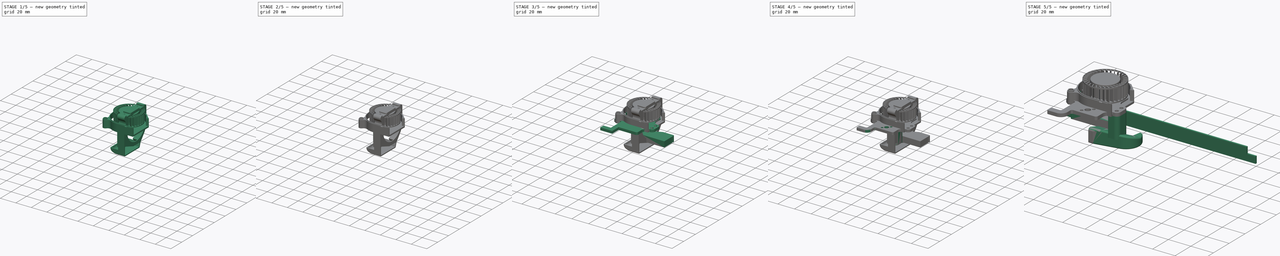
[diagram: build sequence overview — one tinted view per stage of 5, left to right]
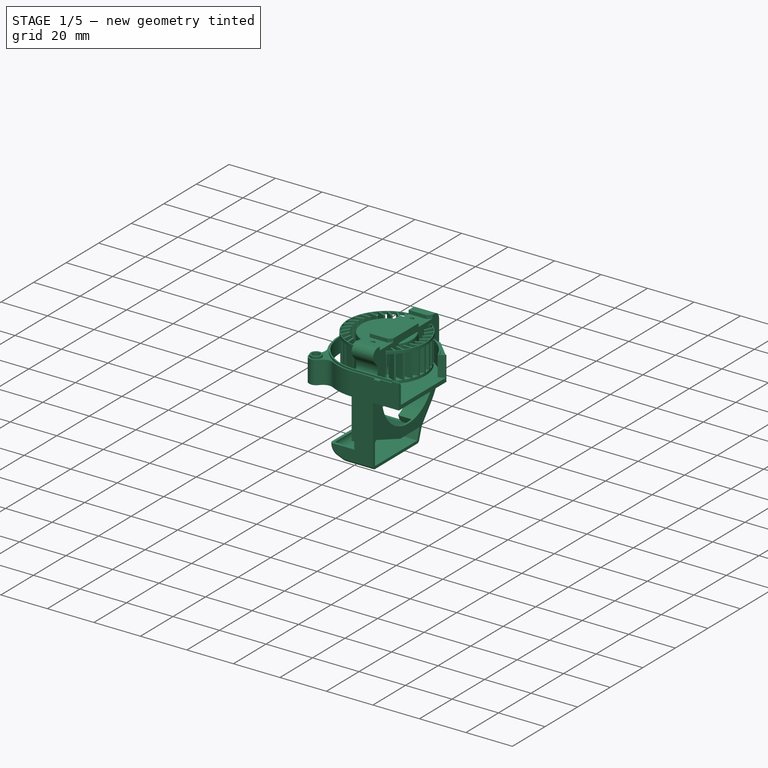
[diagram: stage 1 of 5 — iso view after this stage's code; geometry added in this stage tinted green]
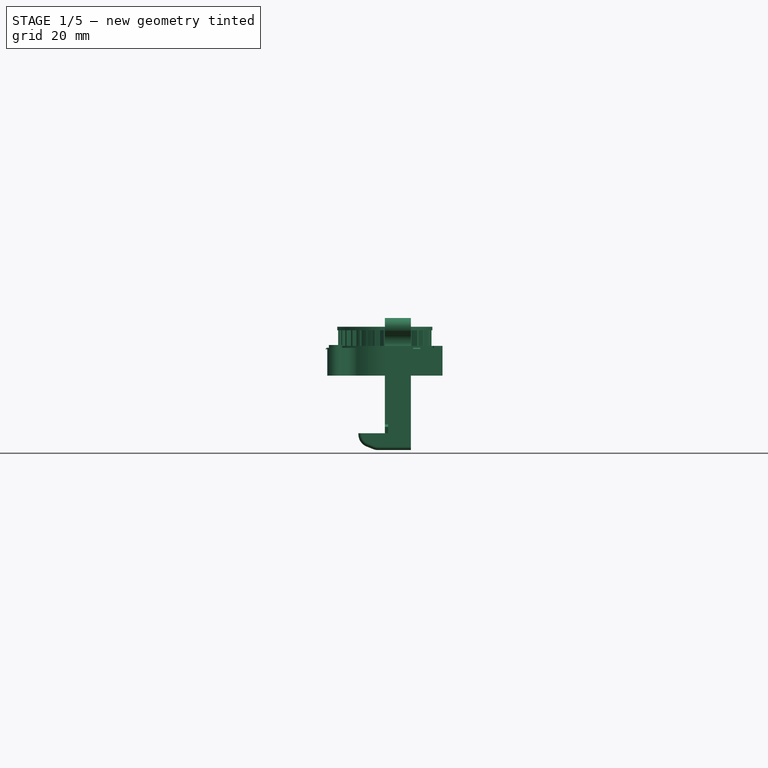
[diagram: stage 1 of 5 — front view after this stage's code; geometry added in this stage tinted green]
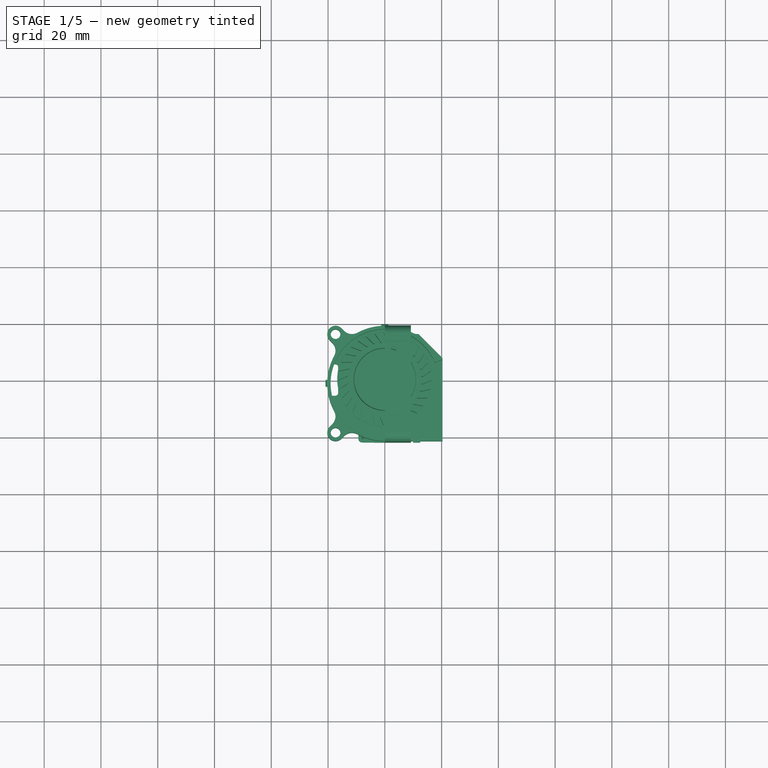
[diagram: stage 1 of 5 — top view after this stage's code; geometry added in this stage tinted green]
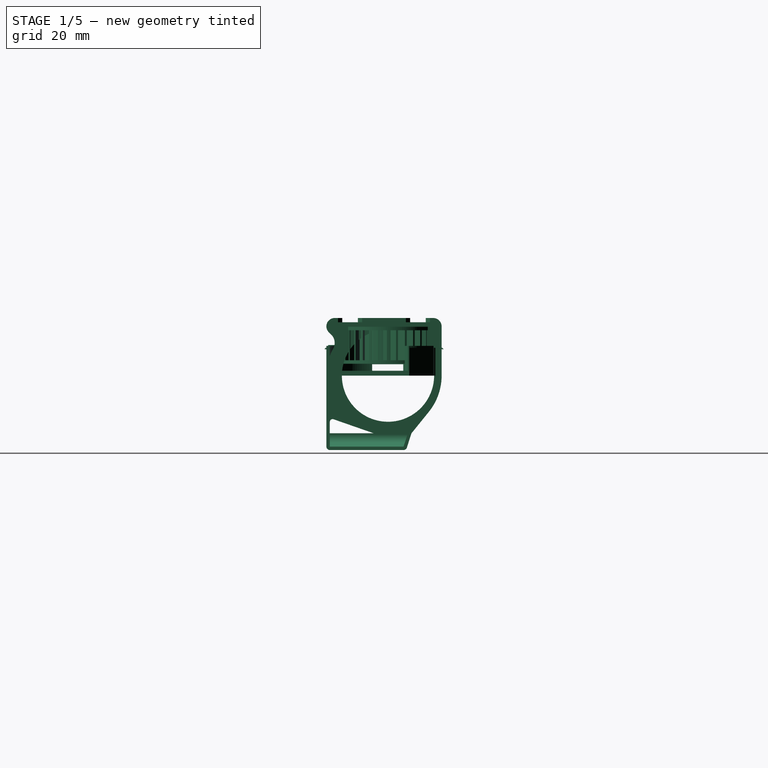
[diagram: stage 1 of 5 — right view after this stage's code; geometry added in this stage tinted green]
FCSTD DOCUMENT  (FreeCAD 2021.922R24301 +4188 (Git))
Label: toolhead
License: All rights reserved
LicenseURL: http://en.wikipedia.org/wiki/All_rights_reserved
objects: Sketcher::SketchObject×31, PartDesign::Pad×18, PartDesign::Pocket×18, PartDesign::Fillet×16, Part::Feature×6, PartDesign::Body×6, App::Part×5, PartDesign::SubShapeBinder×5, PartDesign::CoordinateSystem×4, PartDesign::Chamfer×4, Part::SubShapeBinder×4, PartDesign::PolarPattern×4, App::Link×2, PartDesign::LinearPattern×2, PartDesign::Thickness×2, PartDesign::Line×2, App::DocumentObjectGroup×1, App::FeaturePython×1, PartDesign::Draft×1, Part::Box×1, +3 more types
note: 257 computed .brp shape members not serialized (recipe doc carries the construction recipe); baked Part::Feature solids carry a one-line shape summary decoded from their .brp
EXTERNAL_REF file=Xprinter_v2_0_12.FCStd obj=Model
EXTERNAL_REF file=Xprinter_v2_0_13.FCStd obj=Model

FEATURE [Sketcher::SketchObject] Sketch012
  FullyConstrained = false
  MapMode = 5
  Support = -> [XY_Plane004]
  sketch-geometry (8):
    g0: LineSegment [constr] StartX=-15.5479 StartY=-5 StartZ=0 EndX=-0.117523 EndY=-5 EndZ=0
    g1: LineSegment [constr] StartX=-9.05091 StartY=-8.2902 StartZ=0 EndX=-9.05091 EndY=9.26222 EndZ=0
    g2: Circle [constr] CenterX=-11.6243 CenterY=0 CenterZ=0 NormalX=0 NormalY=0 NormalZ=1 AngleXU=0 Radius=5
    g3: LineSegment StartX=-9.48133 StartY=-6.20854 StartZ=0 EndX=-8.30165 EndY=-6.20854 EndZ=0
    g4: ArcOfCircle CenterX=-8.30165 CenterY=-3.80965 CenterZ=0 NormalX=0 NormalY=0 NormalZ=1 AngleXU=0 Radius=2.39888 StartAngle=4.71239 EndAngle=5.56205
    g5: LineSegment StartX=-6.49994 StartY=-5.39348 StartZ=0 EndX=-0.713194 EndY=1.18931 EndZ=0
    g6: LineSegment StartX=-0.713194 StartY=1.18931 StartZ=0 EndX=-1.8241 EndY=2.13505 EndZ=0
    g7: LineSegment StartX=-1.8241 StartY=2.13505 StartZ=0 EndX=-7.03617 EndY=-4.27814 EndZ=0
  constraints (10):
    c: Horizontal(g0)
    c: Distance(g-1,g0) = 5
    c: Vertical(g1)
    c: PointOnObject(g2,g-1)
    c: Diameter(g2) = 10
    c: Horizontal(g3)
    c: Tangent(g3,g4) = -1.5708
    c: Tangent(g4,g5) = -1.5708
    c: Coincident(g5,g6)
    c: Coincident(g6,g7)
FEATURE [Part::Feature] Part__Feature420  label="4020 Blower Fan v5"
  Placement = pos=(0,0,0) rot=(0.707107,0,0.707107;3.14159rad)
  shape: bbox 17.2 x 41.8 x 41.22 mm, 289 faces, 2 solids (baked)
FEATURE [PartDesign::SubShapeBinder] Binder  label="Binder(4020 Blower Fan v5)"
  BindCopyOnChange = 0
  BindMode = 0
  ClaimChildren = false
  Context = -> <external Xprinter_v2_0_12.FCStd>#Model [Unbenannt.Part.Body003.Binder.]
  FillStyle = 0
  Fuse = false
  MakeFace = true
  PartialLoad = false
  Relative = true
  Support = -> [Part__Feature420]
  _Version = 7
FEATURE [Sketcher::SketchObject] Sketch013
  AttachmentOffset = pos=(0,0,8.4) rot=(0,0,1;0rad)
  ExternalGeometry = -> [Binder]
  FullyConstrained = false
  MapMode = 5
  Placement = pos=(8.4,-1.9e-15,1.9e-15) rot=(0.57735,0.57735,0.57735;2.0944rad)
  Support = -> [YZ_Plane006]
  sketch-geometry (5):
    g0: LineSegment StartX=-20.5023 StartY=-20.3193 StartZ=0 EndX=7.01019 EndY=-20.3193 EndZ=0
    g1: LineSegment StartX=7.01019 StartY=-20.3193 StartZ=0 EndX=5.5 EndY=-25 EndZ=0
    g2: LineSegment StartX=5.5 StartY=-25 StartZ=0 EndX=-20.5023 EndY=-25 EndZ=0
    g3: LineSegment StartX=-20.5023 StartY=-25 StartZ=0 EndX=-20.5023 EndY=-20.3193 EndZ=0
    g4: LineSegment [constr] StartX=-2.38408 StartY=-28.2 StartZ=0 EndX=3.17164 EndY=-28.2 EndZ=0
  constraints (12):
    c: Coincident(g0,g1)
    c: Coincident(g1,g2)
    c: Coincident(g2,g3)
    c: Coincident(g3,g0)
    c: Horizontal(g2)
    c: Vertical(g3)
    c: Coincident(g0,g-4)
    c: Coincident(g0,g-3)
    c: Horizontal(g4)
    c: Distance(g-1,g4) = 28.2
    c: Distance(g4,g2) = 3.2
    c: DistanceX(g-2,g1) = 5.5
FEATURE [PartDesign::Pad] Pad007
  AddSubType = 0
  CheckUpToFaceLimits = true
  ClaimChildren = false
  Direction = (1,1,1)
  Fit = 0
  FitJoin = 0
  InnerFit = 0
  InnerFitJoin = 0
  InnerTaperAngle = 0
  InnerTaperAngleRev = 0
  Length = 0.8
  Length2 = 16.5
  Linearize = true
  NewSolid = false
  Placement = pos=(0,0,0) rot=(0.57735,0.57735,0.57735;2.0944rad)
  Profile = -> Sketch013
  Refine = true
  Reversed = true
  Suppress = false
  Type = 4
  _ProfileBasedVersion = 1
FEATURE [PartDesign::Chamfer] Chamfer
  AddSubType = 0
  Angle = 45
  Base = -> Pad007 [Edge9]
  BaseFeature = -> Pad007
  ChamferType = 1
  FlipDirection = false
  NewSolid = false
  Placement = pos=(0,0,0) rot=(0.57735,0.57735,0.57735;2.0944rad)
  Refine = true
  Size = 5
  Size2 = 2
  SupportTransform = false
  Suppress = false
FEATURE [PartDesign::Fillet] Fillet004
  AddSubType = 0
  Base = -> Chamfer [Edge9,Edge6]
  BaseFeature = -> Chamfer
  NewSolid = false
  Placement = pos=(0,0,0) rot=(0.57735,0.57735,0.57735;2.0944rad)
  Radius = 3.4
  Refine = true
  SupportTransform = false
  Suppress = false
FEATURE [PartDesign::Thickness] Thickness
  AddSubType = 0
  Base = -> Fillet004 [Face6,Face4]
  BaseFeature = -> Fillet004
  Intersection = false
  Join = 0
  Mode = 0
  NewSolid = false
  Refine = true
  SupportTransform = false
  Suppress = false
  Value = 1.2
FEATURE [Sketcher::SketchObject] Sketch014
  AttachmentOffset = pos=(0,0,8.4) rot=(0,0,1;0rad)
  ExternalGeometry = -> [Binder,Thickness]
  FullyConstrained = true
  MapMode = 5
  Placement = pos=(8.4,-1.9e-15,1.9e-15) rot=(0.57735,0.57735,0.57735;2.0944rad)
  Support = -> [YZ_Plane006]
  expr: AttachmentOffset.Base.z = Sketch013.AttachmentOffset.Base.z
  sketch-geometry (13):
    g0: Circle CenterX=0 CenterY=0 CenterZ=0 NormalX=0 NormalY=0 NormalZ=1 AngleXU=0 Radius=16.25
    g1: LineSegment StartX=-18.7523 StartY=20.3 StartZ=0 EndX=15.9477 EndY=20.3 EndZ=0
    g2: ArcOfCircle CenterX=15.9477 CenterY=17.35 CenterZ=0 NormalX=0 NormalY=0 NormalZ=1 AngleXU=0 Radius=2.95 StartAngle=3.8593e-07 EndAngle=1.5708
    g3: LineSegment StartX=18.8977 StartY=17.35 StartZ=0 EndX=18.8977 EndY=3.6e-15 EndZ=0
    g4: ArcOfCircle CenterX=-1.40227 CenterY=-9.7e-15 CenterZ=0 NormalX=0 NormalY=0 NormalZ=1 AngleXU=0 Radius=20.3 StartAngle=5.60302 EndAngle=6.28319
    g5: LineSegment StartX=14.3803 StartY=-12.7672 StartZ=0 EndX=8.2711 EndY=-20.3193 EndZ=0
    g6: LineSegment StartX=8.2711 StartY=-20.3193 StartZ=0 EndX=-5 EndY=-20.3193 EndZ=0
    g7: ArcOfCircle CenterX=-18.7523 CenterY=17.35 CenterZ=0 NormalX=0 NormalY=0 NormalZ=1 AngleXU=0 Radius=2.95 StartAngle=1.5708 EndAngle=3.14159
    g8: LineSegment StartX=-21.7023 StartY=17.35 StartZ=0 EndX=-21.7023 EndY=-20.3193 EndZ=0
    g9: LineSegment StartX=-21.7023 StartY=-20.3193 StartZ=0 EndX=-20.5023 EndY=-20.3193 EndZ=0
    g10: LineSegment StartX=-20.5023 StartY=-20.3193 StartZ=0 EndX=-20.5023 EndY=-16.3193 EndZ=0
    g11: ArcOfCircle CenterX=-19.5023 CenterY=-16.3193 CenterZ=0 NormalX=0 NormalY=0 NormalZ=1 AngleXU=0 Radius=1 StartAngle=1.23515 EndAngle=3.14159
    g12: LineSegment StartX=-19.1729 StartY=-15.3751 StartZ=0 EndX=-5 EndY=-20.3193 EndZ=0
  constraints (31):
    c: Coincident(g0,g-1)
    c: Diameter(g0) = 32.5
    c: Horizontal(g1)
    c: Coincident(g2,g3)
    c: PointOnObject(g3,g-1)
    c: Tangent(g3,g4) = 1.5708
    c: Tangent(g4,g5) = 1.5708
    c: Coincident(g5,g6)
    c: Horizontal(g6)
    c: Coincident(g7,g-4)
    c: Coincident(g2,g-3)
    c: Tangent(g7,g1) = 1.5708
    c: Coincident(g4,g-5)
    c: Coincident(g5,g-6)
    c: Coincident(g9,g8)
    c: Horizontal(g9)
    c: Coincident(g9,g10)
    c: Vertical(g10)
    c: Tangent(g10,g11) = 1.5708
    c: Tangent(g11,g12) = 1.5708
    c: Coincident(g12,g6)
    c: DistanceX(g-2,g6) = -5
    c: Diameter(g11) = 2
    c: Distance(g9) = 1.2
    c: Coincident(g8,g-7)
    c: Distance(g10) = 4
    c: Tangent(g3,g2)
    c: Tangent(g8,g7) = -1.5708
    c: Tangent(g1,g2) = 1.5708
    c: Diameter(g-4) = 5.9
    c: Equal(g7,g-4)
FEATURE [PartDesign::Pad] Pad
  AddSubType = 0
  BaseFeature = -> Thickness
  CheckUpToFaceLimits = true
  ClaimChildren = false
  Direction = (1,1,1)
  Fit = 0
  FitJoin = 0
  InnerFit = 0
  InnerFitJoin = 0
  InnerTaperAngle = 0
  InnerTaperAngleRev = 0
  Length = 0.8
  Length2 = 100
  Linearize = true
  NewSolid = false
  Profile = -> Sketch014
  Refine = true
  Suppress = false
  Type = 0
  _ProfileBasedVersion = 1
FEATURE [Sketcher::SketchObject] Sketch
  ExternalGeometry = -> [Binder,Pad]
  FullyConstrained = true
  MapMode = 5
  Placement = pos=(0,0,0) rot=(0.57735,0.57735,0.57735;2.0944rad)
  Support = -> [YZ_Plane006]
  sketch-geometry (12):
    g0: ArcOfCircle CenterX=-1.40227 CenterY=-1.35e-14 CenterZ=0 NormalX=0 NormalY=0 NormalZ=1 AngleXU=0 Radius=19.1 StartAngle=5.10492 EndAngle=9.42478
    g1: LineSegment StartX=14.3803 StartY=-12.7672 StartZ=0 EndX=8.2711 EndY=-20.3193 EndZ=0
    g2: LineSegment StartX=8.2711 StartY=-20.3193 StartZ=0 EndX=7.01019 EndY=-20.3193 EndZ=0
    g3: LineSegment StartX=7.01019 StartY=-20.3193 StartZ=0 EndX=5.90397 EndY=-17.6473 EndZ=0
    g4: LineSegment StartX=-20.5023 StartY=-6.5e-15 StartZ=0 EndX=-20.5023 EndY=-20.3193 EndZ=0
    g5: LineSegment StartX=-20.5023 StartY=-20.3193 StartZ=0 EndX=-21.7023 EndY=-20.3193 EndZ=0
    g6: LineSegment StartX=-21.7023 StartY=-20.3193 StartZ=0 EndX=-21.7023 EndY=17.35 EndZ=0
    g7: ArcOfCircle CenterX=-1.40227 CenterY=-1.35e-14 CenterZ=0 NormalX=0 NormalY=0 NormalZ=1 AngleXU=0 Radius=20.3 StartAngle=5.60302 EndAngle=6.28319
    g8: ArcOfCircle CenterX=-18.7523 CenterY=17.35 CenterZ=0 NormalX=0 NormalY=0 NormalZ=1 AngleXU=0 Radius=2.95 StartAngle=1.5708 EndAngle=3.14159
    g9: LineSegment StartX=-18.7523 StartY=20.3 StartZ=0 EndX=15.9477 EndY=20.3 EndZ=0
    g10: ArcOfCircle CenterX=15.9477 CenterY=17.35 CenterZ=0 NormalX=0 NormalY=0 NormalZ=1 AngleXU=0 Radius=2.95 StartAngle=1.7e-15 EndAngle=1.5708
    g11: LineSegment StartX=18.8977 StartY=17.35 StartZ=0 EndX=18.8977 EndY=0 EndZ=0
  constraints (26):
    c: Coincident(g0,g-6)
    c: Coincident(g1,g2)
    c: Coincident(g2,g3)
    c: Coincident(g3,g0)
    c: Coincident(g2,g-7)
    c: Coincident(g1,g-8)
    c: Coincident(g0,g-9)
    c: Tangent(g0,g4) = -1.5708
    c: Coincident(g4,g5)
    c: Coincident(g5,g-5)
    c: Coincident(g5,g6)
    c: Vertical(g4)
    c: Horizontal(g5)
    c: Coincident(g7,g0)
    c: PointOnObject(g7,g-1)
    c: PointOnObject(g8,g-4)
    c: Tangent(g8,g9) = 1.5708
    c: Tangent(g9,g10) = 1.5708
    c: Tangent(g10,g11) = 1.5708
    c: Coincident(g11,g7)
    c: Equal(g7,g-9)
    c: Tangent(g7,g1) = 1.5708
    c: Coincident(g10,g-3)
    c: Equal(g10,g8)
    c: Coincident(g8,g-4)
    c: Tangent(g6,g8) = 1.5708
FEATURE [PartDesign::Pad] Pad008
  AddSubType = 0
  BaseFeature = -> Pad
  CheckUpToFaceLimits = true
  ClaimChildren = false
  Direction = (1,1,1)
  Fit = 0
  FitJoin = 0
  InnerFit = 0
  InnerFitJoin = 0
  InnerTaperAngle = 0
  InnerTaperAngleRev = 0
  Length = 8.9
  Length2 = 100
  Linearize = true
  NewSolid = false
  Profile = -> Sketch
  Refine = true
  Suppress = false
  Type = 0
  _ProfileBasedVersion = 1
  expr: Length = <<Sketch013>>.AttachmentOffset.Base.z + 0.5
FEATURE [Sketcher::SketchObject] Sketch016
  FullyConstrained = false
  MapMode = 5
  Support = -> [XY_Plane008]
  sketch-geometry (27):
    g0: LineSegment StartX=0.5 StartY=4.9 StartZ=0 EndX=0.5 EndY=-1.59589 EndZ=0
    g1: LineSegment StartX=7.15804 StartY=-8.76562 StartZ=0 EndX=7.6991 EndY=-8.76562 EndZ=0
    g2: LineSegment StartX=8.29913 StartY=-8.61885 StartZ=0 EndX=10.9 EndY=-7.26562 EndZ=0
    g3: LineSegment StartX=10.9 StartY=-7.26562 StartZ=0 EndX=19.9 EndY=-7.26562 EndZ=0
    g4: LineSegment StartX=19.9 StartY=-7.26562 StartZ=0 EndX=20.6475 EndY=-7.48004 EndZ=0
    g5: LineSegment StartX=21.0059 StartY=-7.53043 StartZ=0 EndX=23.2499 EndY=-7.53043 EndZ=0
    g6: ArcOfCircle CenterX=23.2499 CenterY=-3.03043 CenterZ=0 NormalX=0 NormalY=0 NormalZ=1 AngleXU=0 Radius=4.5 StartAngle=4.71239 EndAngle=6.10865
    g7: LineSegment StartX=27.6816 StartY=-3.81185 StartZ=0 EndX=28.7234 EndY=2.097 EndZ=0
    g8: LineSegment [constr] StartX=28.2025 StartY=-0.857426 StartZ=0 EndX=15.4 EndY=1.4 EndZ=0
    g9: GeomPoint [constr] X=15.4 Y=1.4 Z=0
    g10: ArcOfCircle CenterX=28.0289 CenterY=-1.84223 CenterZ=0 NormalX=0 NormalY=0 NormalZ=1 AngleXU=0 Radius=4 StartAngle=0.610536 EndAngle=1.39626
    g11: ArcOfCircle CenterX=22.3748 CenterY=-5.79846 CenterZ=0 NormalX=0 NormalY=0 NormalZ=1 AngleXU=0 Radius=10.9007 StartAngle=4.90566 EndAngle=6.89372
    g12: LineSegment [constr] StartX=10.9 StartY=-7.26562 StartZ=0 EndX=15.4 EndY=1.4 EndZ=0
    g13: LineSegment [constr] StartX=19.9 StartY=-7.26562 StartZ=0 EndX=15.4 EndY=1.4 EndZ=0
    g14: ArcOfCircle CenterX=21.0059 CenterY=-6.23043 CenterZ=0 NormalX=0 NormalY=0 NormalZ=1 AngleXU=0 Radius=1.3 StartAngle=4.43304 EndAngle=4.71239
    g15: ArcOfCircle CenterX=7.6991 CenterY=-7.46562 CenterZ=0 NormalX=0 NormalY=0 NormalZ=1 AngleXU=0 Radius=1.3 StartAngle=4.71239 EndAngle=5.19215
    g16: LineSegment StartX=0.5 StartY=8.5 StartZ=0 EndX=38 EndY=8.5 EndZ=0
    g17: LineSegment StartX=38 StartY=8.5 StartZ=0 EndX=38 EndY=-20.5023 EndZ=0
    g18: LineSegment [constr] StartX=0.5 StartY=-2.1 StartZ=0 EndX=15.4 EndY=1.4 EndZ=0
    g19: LineSegment [constr] StartX=0.5 StartY=4.9 StartZ=0 EndX=15.4 EndY=1.4 EndZ=0
    g20: LineSegment StartX=0.5 StartY=8.5 StartZ=0 EndX=0.5 EndY=4.9 EndZ=0
    g21: LineSegment StartX=0.839864 StartY=-2.47232 StartZ=0 EndX=6.1979 EndY=-8.34205 EndZ=0
    g22: ArcOfCircle CenterX=7.15804 CenterY=-7.46562 CenterZ=0 NormalX=0 NormalY=0 NormalZ=1 AngleXU=0 Radius=1.3 StartAngle=3.88145 EndAngle=4.71239
    g23: ArcOfCircle CenterX=1.8 CenterY=-1.59589 CenterZ=0 NormalX=0 NormalY=0 NormalZ=1 AngleXU=0 Radius=1.3 StartAngle=3.14159 EndAngle=3.88145
    g24: GeomPoint [constr] X=0.5 Y=-2.1 Z=0
    g25: LineSegment StartX=24.4686 StartY=-16.4962 StartZ=0 EndX=4 EndY=-20.5023 EndZ=0
    g26: LineSegment StartX=38 StartY=-20.5023 StartZ=0 EndX=4 EndY=-20.5023 EndZ=0
  constraints (60):
    c: Coincident(g2,g3)
    c: Horizontal(g3)
    c: Coincident(g3,g4)
    c: Horizontal(g5)
    c: Tangent(g5,g6) = -1.5708
    c: Tangent(g6,g7) = -1.5708
    c: Horizontal(g1)
    c: Distance(g9,g-1) = 1.4
    c: Distance(g9,g-2) = 15.4
    c: Coincident(g8,g9)
    c: Perpendicular(g7,g8)
    c: Symmetric(g7,g6,g8)
    c: Distance(g7) = 6
    c: Distance(g8) = 13
    c: Coincident(g10,g7)
    c: Perpendicular(g10,g7)
    c: Angle(g-1,g8) = 2.96706
    c: Radius(g10) = 4
    c: Tangent(g11,g10) = -1.5708
    c: Distance(g3) = 9
    c: Coincident(g12,g2)
    c: Coincident(g12,g8)
    c: Coincident(g13,g3)
    c: Coincident(g13,g8)
    c: Equal(g13,g12)
    c: Tangent(g4,g14) = -1.5708
    c: Tangent(g5,g14) = -1.5708
    c: Tangent(g1,g15) = -1.5708
    c: Tangent(g2,g15) = -1.5708
    c: Equal(g15,g14)
    c: Radius(g14) = 1.3
    c: Horizontal(g16)
    c: Coincident(g17,g16)
    c: Vertical(g17)
    c: Distance(g0,g24) = 7
    c: Coincident(g18,g24)
    c: Coincident(g18,g8)
    c: Coincident(g19,g0)
    c: Coincident(g19,g8)
    c: Equal(g18,g19)
    c: Distance(g1,g3) = 1.5
    c: Radius(g6) = 4.5
    c: Vertical(g0)
    c: Coincident(g20,g16)
    c: Coincident(g20,g0)
    c: Vertical(g20)
    c: Distance(g-1,g0) = 0.5
    c: Tangent(g1,g22) = -1.5708
    c: Tangent(g21,g22) = -1.5708
    c: Equal(g22,g15)
    c: PointOnObject(g24,g0)
    c: PointOnObject(g24,g21)
    c: Tangent(g0,g23) = -1.5708
    c: Tangent(g21,g23) = -1.5708
    c: Equal(g23,g22)
    c: Tangent(g11,g25) = 1.5708
    c: Coincident(g26,g17)
    c: Coincident(g26,g25)
    c: Horizontal(g26)
    c: DistanceX(g-2,g25) = 4
FEATURE [Sketcher::SketchObject] Sketch017
  FullyConstrained = false
  MapMode = 5
  Placement = pos=(0,0,0) rot=(0.57735,0.57735,0.57735;2.0944rad)
  Support = -> [YZ_Plane008]
  sketch-geometry (4):
    g0: LineSegment StartX=-1.30288 StartY=-36.8925 StartZ=0 EndX=4.64185 EndY=-36.8925 EndZ=0
    g1: LineSegment StartX=4.64185 StartY=-36.8925 StartZ=0 EndX=4.64185 EndY=-31.5725 EndZ=0
    g2: LineSegment StartX=4.64185 StartY=-31.5725 StartZ=0 EndX=-1.30288 EndY=-31.5725 EndZ=0
    g3: LineSegment StartX=-1.30288 StartY=-31.5725 StartZ=0 EndX=-1.30288 EndY=-36.8925 EndZ=0
  constraints (8):
    c: Coincident(g0,g1)
    c: Coincident(g1,g2)
    c: Coincident(g2,g3)
    c: Coincident(g3,g0)
    c: Horizontal(g0)
    c: Horizontal(g2)
    c: Vertical(g1)
    c: Vertical(g3)
FEATURE [Sketcher::SketchObject] Sketch018
  ExternalGeometry = -> [Pad008,Binder]
  FullyConstrained = true
  MapMode = 5
  Placement = pos=(0,0,0) rot=(0.57735,0.57735,0.57735;2.0944rad)
  Support = -> [YZ_Plane006]
  sketch-geometry (16):
    g0: LineSegment StartX=-16.1023 StartY=20.3 StartZ=0 EndX=-10.6023 EndY=20.3 EndZ=0
    g1: LineSegment StartX=-10.6023 StartY=20.3 StartZ=0 EndX=-10.6023 EndY=18.8 EndZ=0
    g2: LineSegment StartX=-10.6023 StartY=18.8 StartZ=0 EndX=-16.1023 EndY=18.8 EndZ=0
    g3: LineSegment StartX=-16.1023 StartY=18.8 StartZ=0 EndX=-16.1023 EndY=20.3 EndZ=0
    g4: LineSegment StartX=7.79773 StartY=20.3 StartZ=0 EndX=13.2977 EndY=20.3 EndZ=0
    g5: LineSegment StartX=13.2977 StartY=20.3 StartZ=0 EndX=13.2977 EndY=18.8 EndZ=0
    g6: LineSegment StartX=13.2977 StartY=18.8 StartZ=0 EndX=7.79773 EndY=18.8 EndZ=0
    g7: LineSegment StartX=7.79773 StartY=18.8 StartZ=0 EndX=7.79773 EndY=20.3 EndZ=0
    g8: LineSegment [constr] StartX=-18.7523 StartY=20.3 StartZ=0 EndX=-16.1023 EndY=20.3 EndZ=0
    g9: LineSegment [constr] StartX=13.2977 StartY=20.3 StartZ=0 EndX=15.9477 EndY=20.3 EndZ=0
    g10: LineSegment [constr] StartX=-1.40227 StartY=24 StartZ=0 EndX=-1.40227 EndY=0 EndZ=0
    g11: ArcOfCircle CenterX=-22.7816 CenterY=11.5505 CenterZ=0 NormalX=0 NormalY=0 NormalZ=1 AngleXU=0 Radius=4 StartAngle=5.78785 EndAngle=7.06858
    g12: ArcOfCircle CenterX=-1.40227 CenterY=-1.6e-14 CenterZ=0 NormalX=0 NormalY=0 NormalZ=1 AngleXU=0 Radius=20.3 StartAngle=2.64625 EndAngle=3.14159
    g13: ArcOfCircle CenterX=-18.7523 CenterY=17.35 CenterZ=0 NormalX=0 NormalY=0 NormalZ=1 AngleXU=0 Radius=2.95 StartAngle=3.14159 EndAngle=3.92699
    g14: LineSegment StartX=-19.9532 StartY=14.379 StartZ=0 EndX=-20.8382 EndY=15.264 EndZ=0
    g15: LineSegment StartX=-21.7023 StartY=17.35 StartZ=0 EndX=-21.7023 EndY=0 EndZ=0
  constraints (43):
    c: Coincident(g0,g1)
    c: Coincident(g1,g2)
    c: Coincident(g2,g3)
    c: Coincident(g3,g0)
    c: Horizontal(g0)
    c: Horizontal(g2)
    c: Vertical(g1)
    c: Vertical(g3)
    c: Coincident(g4,g5)
    c: Coincident(g5,g6)
    c: Coincident(g6,g7)
    c: Coincident(g7,g4)
    c: Horizontal(g4)
    c: Horizontal(g6)
    c: Vertical(g5)
    c: Vertical(g7)
    c: Equal(g4,g0)
    c: Equal(g1,g5)
    c: Horizontal(g4,g0)
    c: Distance(g1) = 1.5
    c: Distance(g0) = 5.5
    c: Coincident(g8,g0)
    c: Coincident(g9,g4)
    c: Coincident(g9,g-3)
    c: Equal(g9,g8)
    c: PointOnObject(g10,g-1)
    c: Coincident(g11,g-4)
    c: Coincident(g11,g-4)
    c: Coincident(g12,g-5)
    c: PointOnObject(g12,g-1)
    c: Coincident(g14,g11)
    c: Tangent(g14,g13) = 1.5708
    c: Coincident(g15,g13)
    c: PointOnObject(g15,g-1)
    c: Vertical(g15)
    c: Distance(g10) = 24
    c: Tangent(g12,g11) = 1.5708
    c: Coincident(g13,g-6)
    c: Coincident(g13,g-6)
    c: Coincident(g8,g-6)
    c: Horizontal(g8)
    c: Distance(g13,g3) = 5.6
    c: Symmetric(g13,g-3,g10)
FEATURE [PartDesign::Pocket] Pocket012
  AddSubType = 1
  BaseFeature = -> Pad008
  CheckUpToFaceLimits = true
  ClaimChildren = false
  Fit = 0
  FitJoin = 0
  InnerFit = 0
  InnerFitJoin = 0
  InnerTaperAngle = 0
  InnerTaperAngleRev = 0
  Length = 5
  Length2 = 100
  Linearize = true
  NewSolid = false
  Profile = -> Sketch018
  Refine = true
  Reversed = true
  Suppress = false
  Type = 1
  _ProfileBasedVersion = 1
FEATURE [Sketcher::SketchObject] Sketch019
  ExternalGeometry = -> [Binder]
  FullyConstrained = true
  MapMode = 5
  Placement = pos=(0,0,0) rot=(0.57735,0.57735,0.57735;2.0944rad)
  Support = -> [YZ_Plane006]
  sketch-geometry (8):
    g0: Circle CenterX=-18.7523 CenterY=17.35 CenterZ=0 NormalX=0 NormalY=0 NormalZ=1 AngleXU=0 Radius=2.45
    g1: Circle CenterX=15.9477 CenterY=17.35 CenterZ=0 NormalX=0 NormalY=0 NormalZ=1 AngleXU=0 Radius=2.45
    g2: ArcOfCircle CenterX=-1.40227 CenterY=-1.02e-14 CenterZ=0 NormalX=0 NormalY=0 NormalZ=1 AngleXU=0 Radius=19.85 StartAngle=5.14271 EndAngle=9.42478
    g3: LineSegment StartX=6.87841 StartY=-18.0403 StartZ=0 EndX=7.82192 EndY=-20.3193 EndZ=0
    g4: LineSegment StartX=7.82192 StartY=-20.3193 StartZ=0 EndX=-21.7023 EndY=-20.3193 EndZ=0
    g5: LineSegment StartX=-21.7023 StartY=-20.3193 StartZ=0 EndX=-21.7023 EndY=-17.1693 EndZ=0
    g6: LineSegment StartX=-21.7023 StartY=-17.1693 StartZ=0 EndX=-21.2523 EndY=-17.1693 EndZ=0
    g7: LineSegment StartX=-21.2523 StartY=-17.1693 StartZ=0 EndX=-21.2523 EndY=-3.6e-15 EndZ=0
  constraints (22):
    c: Coincident(g0,g-3)
    c: Diameter(g0) = 4.9
    c: Coincident(g1,g-4)
    c: Equal(g1,g0)
    c: Coincident(g2,g-5)
    c: PointOnObject(g2,g-1)
    c: Coincident(g3,g2)
    c: Coincident(g4,g3)
    c: Horizontal(g4)
    c: Coincident(g4,g5)
    c: Vertical(g5)
    c: Coincident(g5,g6)
    c: Horizontal(g6)
    c: Coincident(g6,g7)
    c: Coincident(g7,g2)
    c: Vertical(g7)
    c: Distance(g-6,g6) = 0.15
    c: PointOnObject(g-6,g5)
    c: PointOnObject(g-7,g4)
    c: Parallel(g3,g-7)
    c: Distance(g-7,g3) = 0.15
    c: Diameter(g2) = 39.7
FEATURE [PartDesign::Pocket] Pocket013
  AddSubType = 1
  BaseFeature = -> Pocket012
  CheckUpToFaceLimits = true
  ClaimChildren = false
  Fit = 0
  FitJoin = 0
  InnerFit = 0
  InnerFitJoin = 0
  InnerTaperAngle = 0
  InnerTaperAngleRev = 0
  Length = 1.15
  Length2 = 100
  Linearize = true
  NewSolid = false
  Profile = -> Sketch019
  Refine = true
  Reversed = true
  Suppress = false
  Type = 0
  _ProfileBasedVersion = 1
FEATURE [Sketcher::SketchObject] Sketch020
  ExternalGeometry = -> [Pocket013]
  FullyConstrained = true
  MapMode = 5
  Placement = pos=(0,0,0) rot=(0.57735,0.57735,0.57735;2.0944rad)
  Support = -> [YZ_Plane006]
  sketch-geometry (2):
    g0: Circle CenterX=-18.7523 CenterY=17.35 CenterZ=0 NormalX=0 NormalY=0 NormalZ=1 AngleXU=0 Radius=2.05
    g1: Circle CenterX=15.9477 CenterY=17.35 CenterZ=0 NormalX=0 NormalY=0 NormalZ=1 AngleXU=0 Radius=2.05
  constraints (4):
    c: Coincident(g0,g-3)
    c: Coincident(g1,g-4)
    c: Equal(g1,g0)
    c: Diameter(g0) = 4.1
FEATURE [PartDesign::Pocket] Pocket014
  AddSubType = 1
  BaseFeature = -> Pocket013
  CheckUpToFaceLimits = true
  ClaimChildren = false
  Fit = 0
  FitJoin = 0
  InnerFit = 0
  InnerFitJoin = 0
  InnerTaperAngle = 0
  InnerTaperAngleRev = 0
  Length = 5.95
  Length2 = 100
  Linearize = true
  NewSolid = false
  Profile = -> Sketch020
  Refine = true
  Reversed = true
  Suppress = false
  Type = 0
  _ProfileBasedVersion = 1
  expr: Length = 4.8mm + Pocket013.Length
FEATURE [Sketcher::SketchObject] Sketch021
  ExternalGeometry = -> [Pocket014]
  FullyConstrained = true
  MapMode = 5
  Placement = pos=(0,0,0) rot=(0.57735,0.57735,0.57735;2.0944rad)
  Support = -> [YZ_Plane006]
  sketch-geometry (12):
    g0: LineSegment StartX=-15.4023 StartY=17.6 StartZ=0 EndX=-11.3023 EndY=17.6 EndZ=0
    g1: LineSegment StartX=-11.3023 StartY=17.6 StartZ=0 EndX=-11.3023 EndY=16.3 EndZ=0
    g2: LineSegment StartX=-11.3023 StartY=16.3 StartZ=0 EndX=-15.4023 EndY=16.3 EndZ=0
    g3: LineSegment StartX=-15.4023 StartY=16.3 StartZ=0 EndX=-15.4023 EndY=17.6 EndZ=0
    g4: LineSegment [constr] StartX=-16.1023 StartY=18.8 StartZ=0 EndX=-15.4023 EndY=17.6 EndZ=0
    g5: LineSegment [constr] StartX=-10.6023 StartY=18.8 StartZ=0 EndX=-11.3023 EndY=17.6 EndZ=0
    g6: LineSegment StartX=8.49773 StartY=17.6 StartZ=0 EndX=12.5977 EndY=17.6 EndZ=0
    g7: LineSegment StartX=12.5977 StartY=17.6 StartZ=0 EndX=12.5977 EndY=16.3 EndZ=0
    g8: LineSegment StartX=12.5977 StartY=16.3 StartZ=0 EndX=8.49773 EndY=16.3 EndZ=0
    g9: LineSegment StartX=8.49773 StartY=16.3 StartZ=0 EndX=8.49773 EndY=17.6 EndZ=0
    g10: LineSegment [constr] StartX=7.79773 StartY=18.8 StartZ=0 EndX=8.49773 EndY=17.6 EndZ=0
    g11: LineSegment [constr] StartX=13.2977 StartY=18.8 StartZ=0 EndX=12.5977 EndY=17.6 EndZ=0
  constraints (32):
    c: Coincident(g0,g1)
    c: Coincident(g1,g2)
    c: Coincident(g2,g3)
    c: Coincident(g3,g0)
    c: Horizontal(g0)
    c: Horizontal(g2)
    c: Vertical(g1)
    c: Vertical(g3)
    c: Distance(g3) = 1.3
    c: Distance(g0) = 4.1
    c: Distance(g0,g-3) = 1.2
    c: Coincident(g4,g-3)
    c: Coincident(g4,g0)
    c: Coincident(g5,g-3)
    c: Coincident(g5,g0)
    c: Equal(g4,g5)
    c: Coincident(g6,g7)
    c: Coincident(g7,g8)
    c: Coincident(g8,g9)
    c: Coincident(g9,g6)
    c: Horizontal(g6)
    c: Horizontal(g8)
    c: Vertical(g7)
    c: Vertical(g9)
    c: Coincident(g10,g-4)
    c: Coincident(g10,g6)
    c: Coincident(g11,g-4)
    c: Coincident(g11,g6)
    c: Equal(g11,g10)
    c: Equal(g10,g5)
    c: Equal(g6,g0)
    c: Equal(g7,g1)
FEATURE [PartDesign::Pocket] Pocket015
  AddSubType = 1
  BaseFeature = -> Pocket014
  CheckUpToFaceLimits = true
  ClaimChildren = false
  Fit = 0
  FitJoin = 0
  InnerFit = 0
  InnerFitJoin = 0
  InnerTaperAngle = 0
  InnerTaperAngleRev = 0
  Length = 5.2
  Length2 = 100
  Linearize = true
  NewSolid = false
  Profile = -> Sketch021
  Refine = true
  Reversed = true
  Suppress = false
  Type = 0
  _ProfileBasedVersion = 1
FEATURE [Sketcher::SketchObject] Sketch022
  AttachmentOffset = pos=(0,0,15.8) rot=(0,0,1;0rad)
  ExternalGeometry = -> [Pocket015]
  FullyConstrained = true
  MapMode = 5
  Placement = pos=(0,0,15.8) rot=(0,0,1;0rad)
  Support = -> [XY_Plane006]
  sketch-geometry (4):
    g0: Circle [constr] CenterX=3.15 CenterY=10.5477 CenterZ=0 NormalX=0 NormalY=0 NormalZ=1 AngleXU=0 Radius=2.05
    g1: Circle [constr] CenterX=3.15 CenterY=-13.3523 CenterZ=0 NormalX=0 NormalY=0 NormalZ=1 AngleXU=0 Radius=2.05
    g2: Circle CenterX=3.15 CenterY=10.5477 CenterZ=0 NormalX=0 NormalY=0 NormalZ=1 AngleXU=0 Radius=1
    g3: Circle CenterX=3.15 CenterY=-13.3523 CenterZ=0 NormalX=0 NormalY=0 NormalZ=1 AngleXU=0 Radius=1
  constraints (10):
    c: Tangent(g0,g-4)
    c: Tangent(g1,g-3)
    c: Tangent(g0,g-5)
    c: Tangent(g1,g-6)
    c: Equal(g0,g1)
    c: Tangent(g0,g-7)
    c: Coincident(g2,g0)
    c: Coincident(g3,g1)
    c: Equal(g2,g3)
    c: Diameter(g2) = 2
FEATURE [PartDesign::Pocket] Pocket016
  AddSubType = 1
  BaseFeature = -> Pocket015
  CheckUpToFaceLimits = true
  ClaimChildren = false
  Fit = 0
  FitJoin = 0
  InnerFit = 0
  InnerFitJoin = 0
  InnerTaperAngle = 0
  InnerTaperAngleRev = 0
  Length = 5
  Length2 = 100
  Linearize = true
  NewSolid = false
  Profile = -> Sketch022
  Refine = true
  Reversed = true
  Suppress = false
  Type = 1
  _ProfileBasedVersion = 1
FEATURE [Part::SubShapeBinder] Import003  label="Import003(Fusion)"
  BindCopyOnChange = 0
  BindMode = 0
  ClaimChildren = false
  Context = -> Model [Body.Import003.]
  FillStyle = 0
  Fuse = false
  MakeFace = false
  PartialLoad = false
  Relative = true
  Support = -> [Fusion]
  _Version = 7
FEATURE [PartDesign::Chamfer] Chamfer005
  AddSubType = 0
  Angle = 45
  Base = -> Pocket016 [Edge23,Edge21,Edge25,Edge27]
  BaseFeature = -> Pocket016
  ChamferType = 0
  FlipDirection = false
  NewSolid = false
  Refine = true
  Size = 1.5
  Size2 = 1
  SupportTransform = false
  Suppress = false
FEATURE [PartDesign::Body] Body004  label="fan_duct_nozzle"
  AutoGroupSolids = false
  ExportMode = 0
  Group = -> [Sketch015,Pad009,Fillet005,Sketch016,Pocket008,Chamfer001,Chamfer004,Draft,Thickness002,Pocket009,Pocket010,Sketch017,Pocket011,Binder002]
  Origin = -> Origin008
  Placement = pos=(19,0,0) rot=(0,0,1;0rad)
  Tip = -> Pocket011
  _ExportChildren = -> [Pad009,Fillet005,Pocket008,Chamfer001,Chamfer004,Draft,Thickness002,Pocket009,Pocket010,Pocket011,Binder002]
  _GroupVersion = 1
  expr: Placement.Base.x = <<fan_duct>>.Placement.Base.x + Sketch014.AttachmentOffset.Base.z + Pad.Length
FEATURE [App::Part] Part  label="Fan_assmbly"
  ExportMode = 1
  Group = -> [Link001,Part__Feature420,Body003,Body004]
  Origin = -> Origin006
  Placement = pos=(-31.5,-27.9,-18.85) rot=(0,0,1;0rad)
  _ExportChildren = -> [Link001,Part__Feature420,Body003,Body004]
  _GroupVersion = 1
FEATURE [Part::Box] Box  label="Würfel"
  AttacherType = Attacher::AttachEngine3D
  Height = 30
  Length = 30
  Placement = pos=(29.0122,-1.20101,-5) rot=(0,0,1;0.785398rad)
  Width = 30
FEATURE [Part::Feature] Part__Feature421  label="4020 Blower Fan v006"
  Placement = pos=(0,0,0) rot=(0,0,-1;3.14159rad)
  shape: bbox 41.22 x 41.8 x 17.2 mm, 289 faces, 2 solids (baked)
FEATURE [Part::Cut] Cut  label="FAN"
  Base = -> Part__Feature421
  Refine = true
  Tool = -> Box
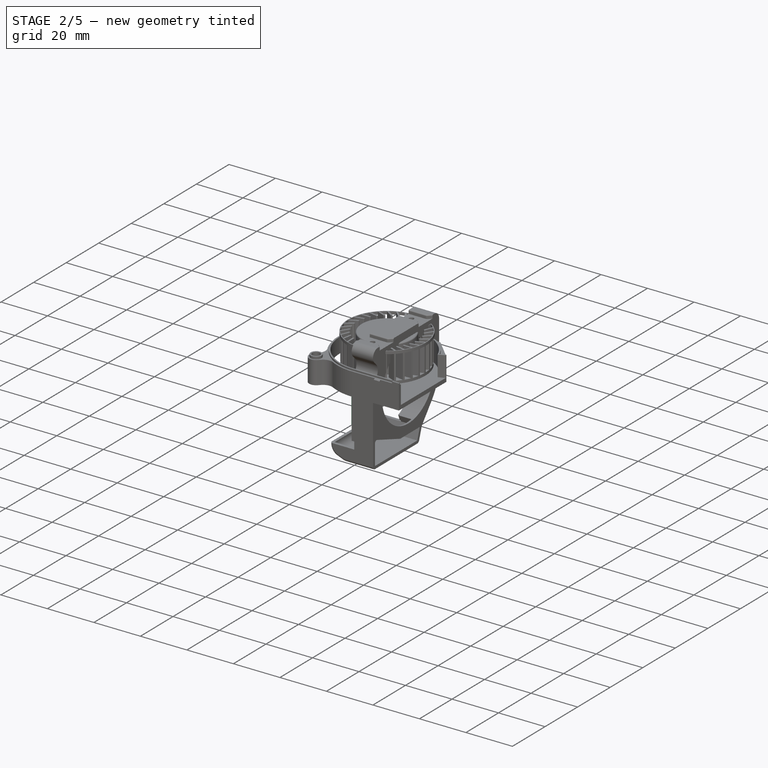
[diagram: stage 2 of 5 — iso view after this stage's code; geometry added in this stage tinted green]
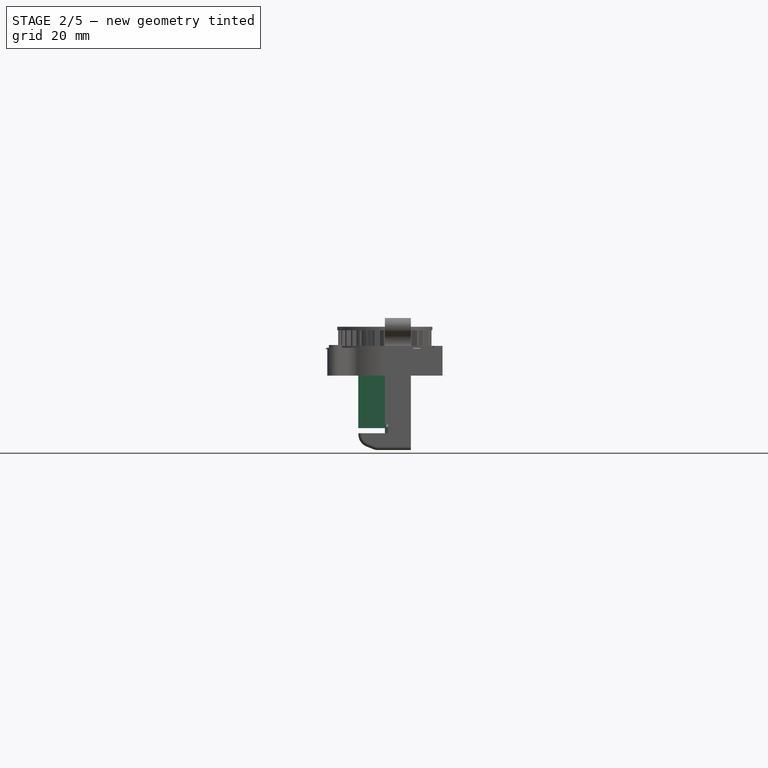
[diagram: stage 2 of 5 — front view after this stage's code; geometry added in this stage tinted green]
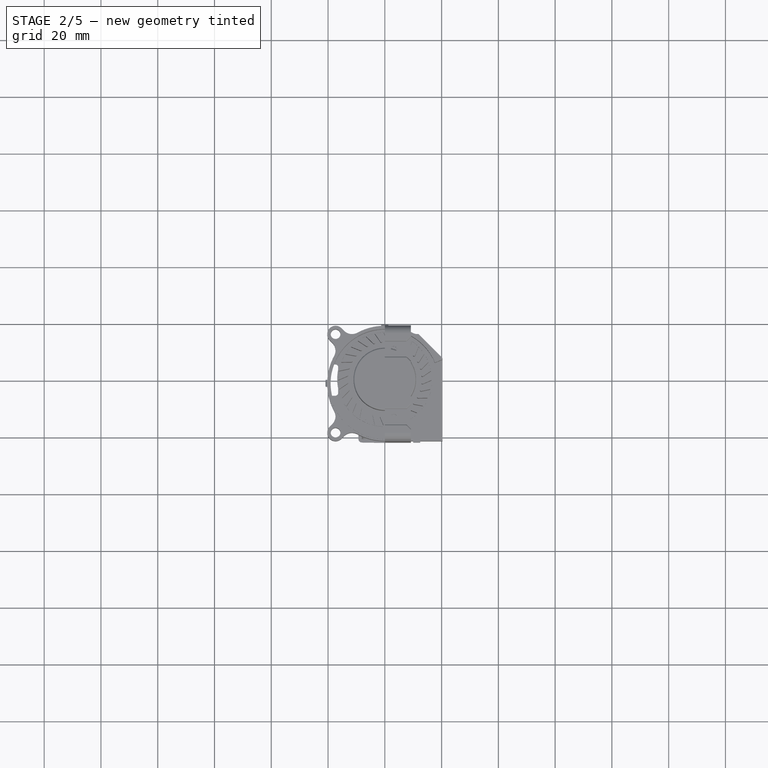
[diagram: stage 2 of 5 — top view after this stage's code; geometry added in this stage tinted green]
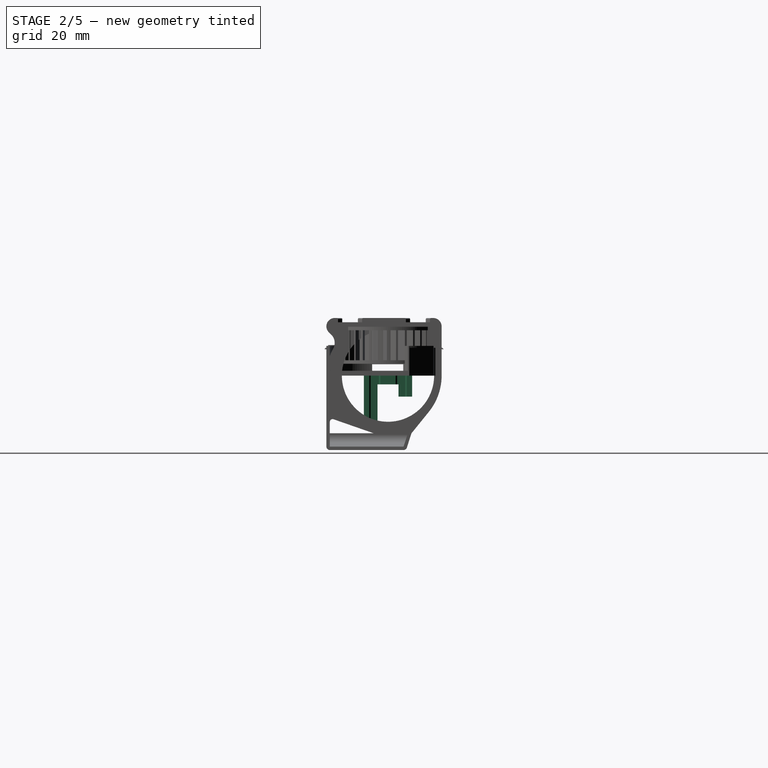
[diagram: stage 2 of 5 — right view after this stage's code; geometry added in this stage tinted green]
FEATURE [Part::Feature] Feature  label="BLTouch-Smart V3.1"
  Placement = pos=(-23,-22,0) rot=(0,0,-1;4.71239rad)
  shape: bbox 16.53 x 26.01 x 53.81 mm, 139 faces, 11 solids (baked)
FEATURE [App::Link] Link001  label="Link001(4010_fan)"
  AutoLinkLabel = true
  AutoPlacement = true
  LinkPlacement = pos=(0,0,0) rot=(0,1,0;1.5708rad)
  LinkedObject = -> Part001
  Placement = pos=(0,0,0) rot=(0,1,0;1.5708rad)
  SyncGroupVisibility = false
  _LinkVersion = 1
FEATURE [Sketcher::SketchObject] Sketch002
  FullyConstrained = true
  MapMode = 5
  Support = -> [XY_Plane004]
  sketch-geometry (16):
    g0: LineSegment StartX=0 StartY=8.5 StartZ=0 EndX=-9.35 EndY=8.5 EndZ=0
    g1: LineSegment StartX=-9.35 StartY=8.5 StartZ=0 EndX=-9.35 EndY=5.01996 EndZ=0
    g2: LineSegment StartX=-9.35 StartY=-8.5 StartZ=0 EndX=0 EndY=-8.5 EndZ=0
    g3: ArcOfCircle CenterX=-12.45 CenterY=1e-15 CenterZ=0 NormalX=0 NormalY=0 NormalZ=1 AngleXU=0 Radius=5.9 StartAngle=5.2656 EndAngle=7.30077
    g4: LineSegment StartX=0 StartY=8.5 StartZ=0 EndX=0.5 EndY=8.5 EndZ=0
    g5: LineSegment StartX=0.5 StartY=8.5 StartZ=0 EndX=0.5 EndY=6.6 EndZ=0
    g6: LineSegment StartX=0.5 StartY=6.6 StartZ=0 EndX=0 EndY=6.1 EndZ=0
    g7: LineSegment StartX=0 StartY=6.1 StartZ=0 EndX=0 EndY=3.2 EndZ=0
    g8: LineSegment StartX=0 StartY=3.2 StartZ=0 EndX=0.5 EndY=2.7 EndZ=0
    g9: LineSegment StartX=0.5 StartY=2.7 StartZ=0 EndX=0.5 EndY=-2.7 EndZ=0
    g10: LineSegment StartX=0.5 StartY=-2.7 StartZ=0 EndX=0 EndY=-3.2 EndZ=0
    g11: LineSegment StartX=0 StartY=-3.2 StartZ=0 EndX=0 EndY=-6.1 EndZ=0
    g12: LineSegment StartX=0 StartY=-6.1 StartZ=0 EndX=0.5 EndY=-6.6 EndZ=0
    g13: LineSegment StartX=0.5 StartY=-6.6 StartZ=0 EndX=0.5 EndY=-8.5 EndZ=0
    g14: LineSegment StartX=0.5 StartY=-8.5 StartZ=0 EndX=0 EndY=-8.5 EndZ=0
    g15: LineSegment StartX=-9.35 StartY=-5.01996 StartZ=0 EndX=-9.35 EndY=-8.5 EndZ=0
  constraints (46):
    c: PointOnObject(g0,g-2)
    c: Horizontal(g0)
    c: Coincident(g0,g1)
    c: Vertical(g1)
    c: Horizontal(g2)
    c: Symmetric(g0,g2,g-1)
    c: Distance(g0,g2) = 17
    c: Diameter(g3) = 11.8
    c: Distance(g3,g1) = 3.1
    c: Coincident(g3,g1)
    c: Coincident(g0,g4)
    c: Horizontal(g4)
    c: Coincident(g4,g5)
    c: Vertical(g5)
    c: Coincident(g5,g6)
    c: PointOnObject(g6,g-2)
    c: Coincident(g6,g7)
    c: PointOnObject(g7,g-2)
    c: Coincident(g7,g8)
    c: Coincident(g8,g9)
    c: Coincident(g9,g10)
    c: PointOnObject(g10,g-2)
    c: Coincident(g10,g11)
    c: PointOnObject(g11,g-2)
    c: Coincident(g11,g12)
    c: Coincident(g12,g13)
    c: Vertical(g13)
    c: Coincident(g13,g14)
    c: Coincident(g14,g2)
    c: Symmetric(g8,g9,g-1)
    c: Equal(g8,g6)
    c: Equal(g6,g10)
    c: Equal(g10,g12)
    c: Horizontal(g14)
    c: Vertical(g12,g9)
    c: Vertical(g9,g5)
    c: Distance(g-1,g9) = 0.5
    c: DistanceY(g-1,g8) = 2.7
    c: Distance(g7) = 2.9
    c: Perpendicular(g8,g10)
    c: Equal(g11,g7)
    c: Distance(g-1,g1) = 9.35
    c: Symmetric(g1,g3,g-1)
    c: Coincident(g15,g3)
    c: Coincident(g15,g2)
    c: Vertical(g15)
FEATURE [PartDesign::Pad] Pad002
  AddSubType = 0
  CheckUpToFaceLimits = true
  ClaimChildren = false
  Direction = (1,1,1)
  Fit = 0
  FitJoin = 0
  InnerFit = 0
  InnerFitJoin = 0
  InnerTaperAngle = 0
  InnerTaperAngleRev = 0
  Length = 7.4
  Length2 = 100
  Linearize = true
  NewSolid = false
  Profile = -> Sketch002
  Refine = true
  Reversed = true
  Suppress = false
  Type = 0
  _ProfileBasedVersion = 0
FEATURE [Sketcher::SketchObject] Sketch003
  AttachmentOffset = pos=(0,0,-3.1) rot=(0,0,1;0rad)
  FullyConstrained = true
  MapMode = 5
  Placement = pos=(0,0,-3.1) rot=(0,0,1;0rad)
  Support = -> [XY_Plane004]
  sketch-geometry (4):
    g0: LineSegment StartX=-19 StartY=3.7 StartZ=0 EndX=1 EndY=3.7 EndZ=0
    g1: LineSegment StartX=1 StartY=3.7 StartZ=0 EndX=1 EndY=-3.7 EndZ=0
    g2: LineSegment StartX=1 StartY=-3.7 StartZ=0 EndX=-19 EndY=-3.7 EndZ=0
    g3: LineSegment StartX=-19 StartY=-3.7 StartZ=0 EndX=-19 EndY=3.7 EndZ=0
  constraints (12):
    c: Coincident(g0,g1)
    c: Coincident(g1,g2)
    c: Coincident(g2,g3)
    c: Coincident(g3,g0)
    c: Horizontal(g0)
    c: Horizontal(g2)
    c: Vertical(g1)
    c: Vertical(g3)
    c: DistanceY(g-1,g0) = 3.7
    c: DistanceY(g-1,g2) = -3.7
    c: Distance(g0) = 20
    c: DistanceX(g-2,g1) = 1
FEATURE [PartDesign::Pocket] Pocket
  AddSubType = 1
  BaseFeature = -> Pad002
  CheckUpToFaceLimits = true
  ClaimChildren = false
  Fit = 0
  FitJoin = 0
  InnerFit = 0
  InnerFitJoin = 0
  InnerTaperAngle = 0
  InnerTaperAngleRev = 0
  Length = 10
  Length2 = 100
  Linearize = true
  NewSolid = false
  Profile = -> Sketch003
  Refine = true
  Suppress = false
  Type = 0
  _ProfileBasedVersion = 0
FEATURE [Sketcher::SketchObject] Sketch004
  FullyConstrained = true
  MapMode = 5
  Support = -> [XY_Plane004]
  sketch-geometry (4):
    g0: LineSegment StartX=-13.2 StartY=5 StartZ=0 EndX=-1.2 EndY=5 EndZ=0
    g1: LineSegment StartX=-1.2 StartY=5 StartZ=0 EndX=-1.2 EndY=6.5 EndZ=0
    g2: LineSegment StartX=-1.2 StartY=6.5 StartZ=0 EndX=-13.2 EndY=6.5 EndZ=0
    g3: LineSegment StartX=-13.2 StartY=6.5 StartZ=0 EndX=-13.2 EndY=5 EndZ=0
  constraints (12):
    c: Horizontal(g0)
    c: Coincident(g1,g0)
    c: Vertical(g1)
    c: Coincident(g1,g2)
    c: Horizontal(g2)
    c: Coincident(g2,g3)
    c: Coincident(g3,g0)
    c: Vertical(g3)
    c: Distance(g3) = 1.5
    c: DistanceX(g-2,g0) = -1.2
    c: Distance(g-1,g0) = 5
    c: Distance(g2) = 12
FEATURE [PartDesign::Pocket] Pocket001
  AddSubType = 1
  BaseFeature = -> Pocket
  CheckUpToFaceLimits = true
  ClaimChildren = false
  Fit = 0
  FitJoin = 0
  InnerFit = 0
  InnerFitJoin = 0
  InnerTaperAngle = 0
  InnerTaperAngleRev = 0
  Length = 6.5
  Length2 = 100
  Linearize = true
  NewSolid = false
  Profile = -> Sketch004
  Refine = true
  Suppress = false
  Type = 0
  _ProfileBasedVersion = 0
FEATURE [Sketcher::SketchObject] Sketch005  label="Sketch_tooth"
  ExternalGeometry = -> [Pocket001]
  FullyConstrained = true
  MapMode = 5
  Support = -> [XY_Plane004]
  sketch-geometry (7):
    g0: LineSegment StartX=-2.91416 StartY=6.5 StartZ=0 EndX=-2.8 EndY=5.98507 EndZ=0
    g1: ArcOfCircle CenterX=-2.50711 CenterY=6.05 CenterZ=0 NormalX=0 NormalY=0 NormalZ=1 AngleXU=0 Radius=0.3 StartAngle=3.35976 EndAngle=4.71239
    g2: LineSegment StartX=-2.50711 StartY=5.75 StartZ=0 EndX=-2.29289 EndY=5.75 EndZ=0
    g3: ArcOfCircle CenterX=-2.29289 CenterY=6.05 CenterZ=0 NormalX=0 NormalY=0 NormalZ=1 AngleXU=0 Radius=0.3 StartAngle=4.71239 EndAngle=6.06502
    g4: LineSegment StartX=-2 StartY=5.98507 StartZ=0 EndX=-1.88584 EndY=6.5 EndZ=0
    g5: LineSegment StartX=-2.91416 StartY=6.5 StartZ=0 EndX=-1.88584 EndY=6.5 EndZ=0
    g6: GeomPoint [constr] X=-2.4 Y=5.75 Z=0
  constraints (17):
    c: Tangent(g0,g1) = -1.5708
    c: Tangent(g1,g2) = -1.5708
    c: Tangent(g2,g3) = -1.5708
    c: Tangent(g3,g4) = -1.5708
    c: Equal(g3,g1)
    c: Radius(g1) = 0.3  'r'
    c: Equal(g4,g0)
    c: Coincident(g5,g0)
    c: Coincident(g5,g4)
    c: Horizontal(g5)
    c: PointOnObject(g-3,g5)
    c: Horizontal(g2)
    c: Distance(g3,g0) = 0.8  'breite'
    c: DistanceY(g2,g-3) = 0.75  'height'
    c: Angle(g4,g0) = 0.436332  'angle'
    c: Symmetric(g2,g1,g6)
    c: DistanceX(g6,g-3) = 1.2
FEATURE [PartDesign::Pad] Pad003
  AddSubType = 0
  BaseFeature = -> Pocket001
  CheckUpToFaceLimits = true
  ClaimChildren = false
  Direction = (1,1,1)
  Fit = 0
  FitJoin = 0
  InnerFit = 0
  InnerFitJoin = 0
  InnerTaperAngle = 0
  InnerTaperAngleRev = 0
  Length = 6.5
  Length2 = 100
  Linearize = true
  NewSolid = false
  Profile = -> Sketch005
  Refine = true
  Reversed = true
  Suppress = false
  Type = 0
  _ProfileBasedVersion = 0
FEATURE [PartDesign::LinearPattern] LinearPattern
  AddSubType = 0
  BaseFeature = -> Pad003
  CopyShape = false
  Direction = -> X_Axis004
  Length = 6
  NewSolid = false
  Occurrences = 4
  OriginalSubs = -> [Pad003]
  Originals = -> [Pad003]
  ParallelTransform = true
  Refine = true
  Reversed = true
  SubTransform = true
  Suppress = false
  _Version = 0
FEATURE [PartDesign::Fillet] Fillet
  AddSubType = 0
  Base = -> LinearPattern [Edge38]
  BaseFeature = -> LinearPattern
  NewSolid = false
  Radius = 0.25
  Refine = true
  SupportTransform = false
  Suppress = false
FEATURE [Sketcher::SketchObject] Sketch006
  AttachmentOffset = pos=(0,0,-3.1) rot=(0,0,1;0rad)
  ExternalGeometry = -> [Fillet]
  FullyConstrained = true
  MapMode = 5
  Placement = pos=(0,0,-3.1) rot=(0,0,1;0rad)
  Support = -> [XY_Plane004]
  expr: AttachmentOffset.Base.z = Sketch003.AttachmentOffset.Base.z
  sketch-geometry (1):
    g0: Circle CenterX=-3.3 CenterY=1.9 CenterZ=0 NormalX=0 NormalY=0 NormalZ=1 AngleXU=0 Radius=1.25
  constraints (3):
    c: Diameter(g0) = 2.5
    c: DistanceY(g-1,g0) = 1.9
    c: Distance(g0,g-2) = 3.3
FEATURE [PartDesign::Pocket] Pocket002
  AddSubType = 1
  BaseFeature = -> Fillet
  CheckUpToFaceLimits = true
  ClaimChildren = false
  Fit = 0
  FitJoin = 0
  InnerFit = 0
  InnerFitJoin = 0
  InnerTaperAngle = 0
  InnerTaperAngleRev = 0
  Length = 5
  Length2 = 100
  Linearize = true
  NewSolid = false
  Profile = -> Sketch006
  Refine = true
  Reversed = true
  Suppress = false
  Type = 0
  _ProfileBasedVersion = 0
FEATURE [PartDesign::Fillet] Fillet001
  AddSubType = 0
  Base = -> Pocket002 [Edge52]
  BaseFeature = -> Pocket002
  NewSolid = false
  Radius = 0.4
  Refine = true
  SupportTransform = false
  Suppress = false
FEATURE [Sketcher::SketchObject] Sketch007
  ExternalGeometry = -> [Fillet001]
  FullyConstrained = true
  MapMode = 5
  Support = -> [XY_Plane004]
  sketch-geometry (3):
    g0: LineSegment StartX=-9.65066 StartY=8 StartZ=0 EndX=-8.60613 EndY=4 EndZ=0
    g1: LineSegment StartX=-8.60613 StartY=4 StartZ=0 EndX=-10.6952 EndY=4 EndZ=0
    g2: LineSegment StartX=-10.6952 StartY=4 StartZ=0 EndX=-9.65066 EndY=8 EndZ=0
  constraints (9):
    c: Coincident(g0,g1)
    c: Horizontal(g1)
    c: Coincident(g1,g2)
    c: Coincident(g2,g0)
    c: Tangent(g0,g-4)
    c: Tangent(g0,g-3)
    c: Equal(g0,g2)
    c: DistanceY(g-1,g0) = 4
    c: Distance(g0,g1) = 4
FEATURE [PartDesign::Pocket] Pocket004
  AddSubType = 1
  BaseFeature = -> Fillet001
  CheckUpToFaceLimits = true
  ClaimChildren = false
  Fit = 0
  FitJoin = 0
  InnerFit = 0
  InnerFitJoin = 0
  InnerTaperAngle = 0
  InnerTaperAngleRev = 0
  Length = 5
  Length2 = 100
  Linearize = true
  NewSolid = false
  Profile = -> Sketch007
  Refine = true
  Suppress = false
  Type = 1
  _ProfileBasedVersion = 0
FEATURE [PartDesign::Body] Body005  label="Belts"
  AutoGroupSolids = false
  ExportMode = 0
  Group = -> [Sketch023,Sketch024,Pad010,Pad011,Sketch025,Pocket017]
  Origin = -> Origin009
  Tip = -> Pocket017
  _ExportChildren = -> [Pad010,Pad011,Pocket017]
  _GroupVersion = 1
FEATURE [PartDesign::Pad] Pad013
  AddSubType = 0
  BaseFeature = -> Pocket004
  CheckUpToFaceLimits = true
  ClaimChildren = false
  Direction = (1,1,1)
  Fit = 0
  FitJoin = 0
  InnerFit = 0
  InnerFitJoin = 0
  InnerTaperAngle = 0
  InnerTaperAngleRev = 0
  Length = 11.1
  Length2 = 100
  Linearize = true
  NewSolid = false
  Profile = -> Pocket004 [Face54]
  Refine = true
  Suppress = false
  Type = 0
  _ProfileBasedVersion = 1
FEATURE [Part::SubShapeBinder] Import001  label="Import001(Pad013)"
  BindCopyOnChange = 0
  BindMode = 0
  ClaimChildren = false
  Context = -> Model [Body002.Import001.]
  FillStyle = 0
  Fuse = false
  MakeFace = false
  PartialLoad = false
  Relative = true
  Support = -> [Body001[Pad013.]]
  _Version = 7
FEATURE [PartDesign::Line] DatumLine
  AttacherType = Attacher::AttachEngineLine
  AttachmentOffset = pos=(0,-9.25,0) rot=(0,0,1;0rad)
  Length = 10
  MapMode = 16
  MinimumLength = 10
  Placement = pos=(0,0,-9.25) rot=(0.57735,0.57735,0.57735;2.0944rad)
  ResizeMode = 0
  Support = -> [XY_Plane004]
FEATURE [PartDesign::PolarPattern] PolarPattern
  AddSubType = 0
  Angle = 360
  Axis = -> DatumLine
  BaseFeature = -> Pad013
  CopyShape = false
  NewSolid = false
  Occurrences = 2
  OriginalSubs = -> [Pocket001]
  Originals = -> [Pocket001]
  ParallelTransform = true
  Refine = true
  SubTransform = true
  Suppress = false
  _Version = 0
FEATURE [PartDesign::Fillet] Fillet011
  AddSubType = 0
  Base = -> Chamfer005 [Edge39,Edge53,Edge89,Edge70]
  BaseFeature = -> Chamfer005
  NewSolid = false
  Radius = 1
  Refine = true
  SupportTransform = false
  Suppress = false
FEATURE [PartDesign::Fillet] Fillet012
  AddSubType = 0
  Base = -> Fillet011 [Edge163,Edge149,Edge148,Edge1]
  BaseFeature = -> Fillet011
  NewSolid = false
  Radius = 0.4
  Refine = true
  SupportTransform = false
  Suppress = false
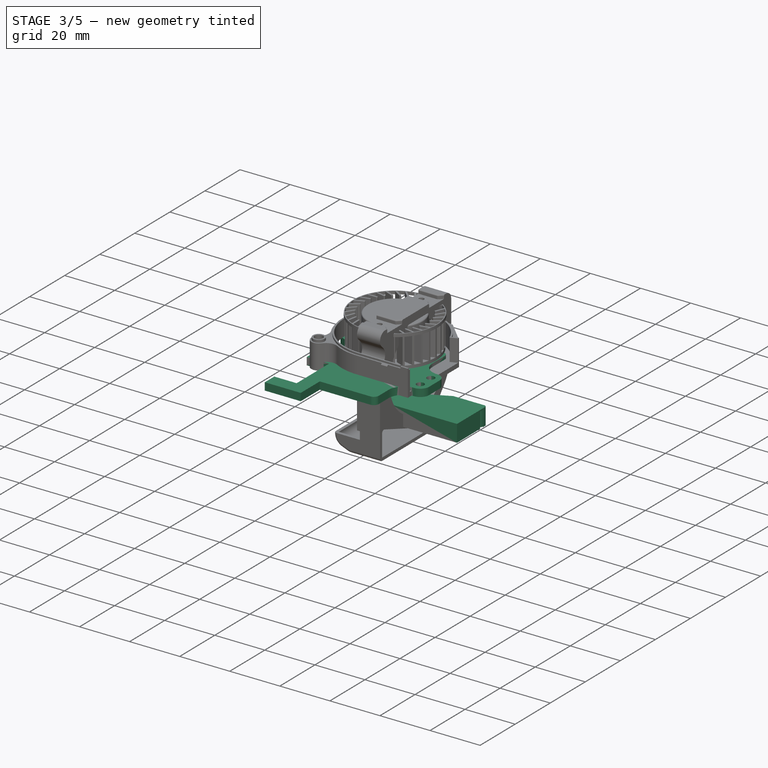
[diagram: stage 3 of 5 — iso view after this stage's code; geometry added in this stage tinted green]
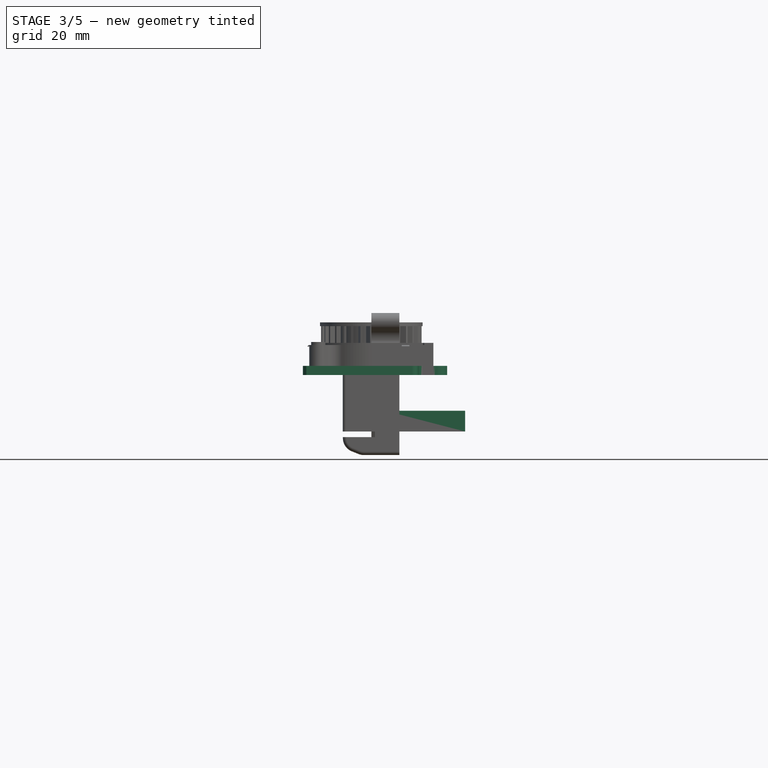
[diagram: stage 3 of 5 — front view after this stage's code; geometry added in this stage tinted green]
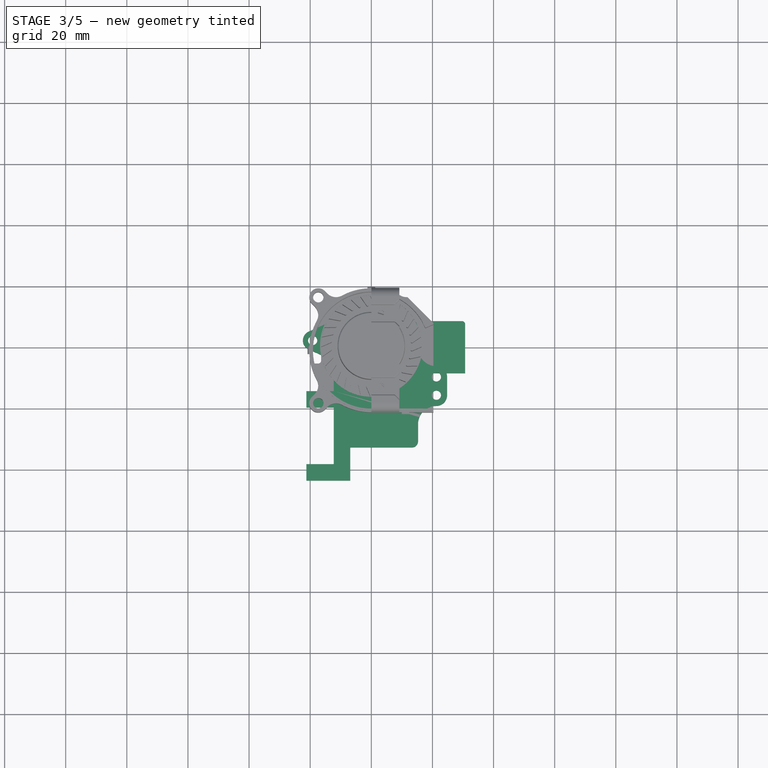
[diagram: stage 3 of 5 — top view after this stage's code; geometry added in this stage tinted green]
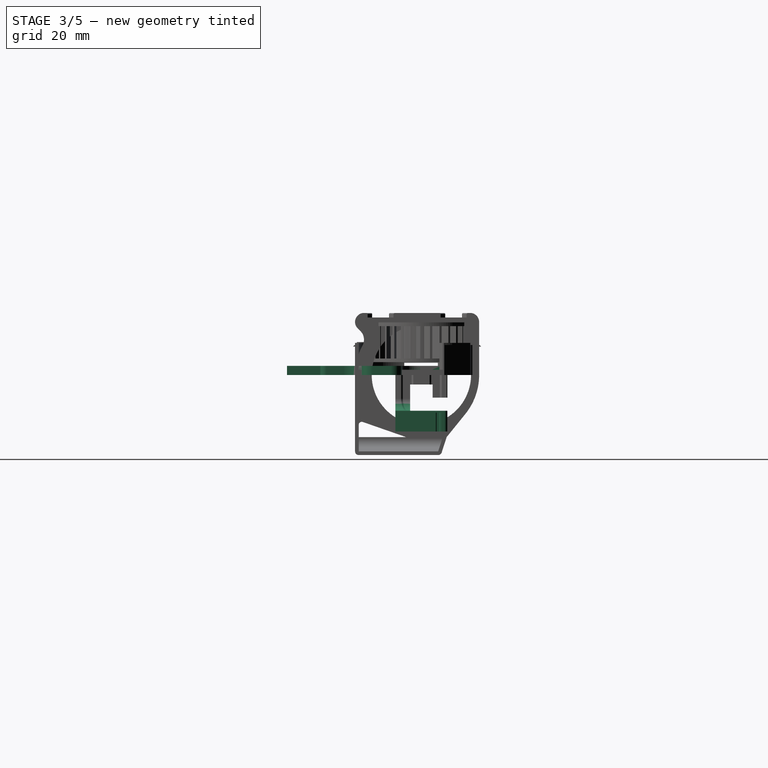
[diagram: stage 3 of 5 — right view after this stage's code; geometry added in this stage tinted green]
FEATURE [PartDesign::CoordinateSystem] LCS_Origin
  AttacherType = Attacher::AttachEngine3D
  MapMode = 2
  Support = -> [X_Axis]
FEATURE [App::DocumentObjectGroup] Constraints
  ExportMode = 1
  _GroupVersion = 1
FEATURE [App::FeaturePython] Variables  # WARN: FeaturePython — macro-defined, semantics opaque (R4)
FEATURE [App::Link] mgn7_H_MGN7_H  label="mgn7_H_MGN7_H(MGN7_H_H)"
  AssemblyType = Asm4EE
  AttachedBy = #Local_CS001
  AttachedTo = Parent Assembly#LCS_Origin
  AttachmentOffset = pos=(0,0,0) rot=(0.707107,-0.707107,0;3.14159rad)
  AutoLinkLabel = true
  AutoPlacement = true
  LinkPlacement = pos=(-5e-16,4e-15,-3.25) rot=(0.57735,-0.57735,0.57735;4.18879rad)
  LinkedObject = -> MGN7_H
  Placement = pos=(-5e-16,4e-15,-3.25) rot=(0.57735,-0.57735,0.57735;4.18879rad)
  SyncGroupVisibility = false
  _LinkVersion = 1
  expr: Placement = LCS_Origin.Placement * AttachmentOffset * Local_CS001.Placement ^ (-1)
FEATURE [Part::Feature] Part__Feature141  label="25x25x10 DC fan "
  Placement = pos=(-0.2,-16.5,-4) rot=(0,-1,0;4.71239rad)
  shape: bbox 25 x 10 x 28.41 mm, 102 faces, 3 solids (baked)
FEATURE [Part::Feature] Part__Feature146  label="Slice Mosquito-0.step"
  Placement = pos=(-0.2,0,-20) rot=(0.57735,0.57735,0.57735;2.0944rad)
  shape: bbox 27.22 x 19.07 x 47.22 mm, 426 faces, 0 solids (baked)
FEATURE [PartDesign::CoordinateSystem] LCS_0
  AttacherType = Attacher::AttachEngine3D
  MapMode = 2
  Support = -> [X_Axis001]
FEATURE [App::Part] Mosquitto
  ExportMode = 1
  Group = -> [LCS_0,Part__Feature146,Part__Feature141]
  Origin = -> Origin001
  Placement = pos=(2.7,-26.5,-8.5) rot=(0,0,1;3.14159rad)
  _ExportChildren = -> [LCS_0,Part__Feature146,Part__Feature141]
  _GroupVersion = 1
FEATURE [Sketcher::SketchObject] Sketch001
  FullyConstrained = false
  MapMode = 5
  Support = -> [XY_Plane003]
  sketch-geometry (13):
    g0: LineSegment [constr] StartX=-30 StartY=5 StartZ=0 EndX=30 EndY=5 EndZ=0
    g1: LineSegment [constr] StartX=30 StartY=5 StartZ=0 EndX=30 EndY=-5 EndZ=0
    g2: LineSegment [constr] StartX=30 StartY=-5 StartZ=0 EndX=-30 EndY=-5 EndZ=0
    g3: LineSegment [constr] StartX=-30 StartY=-5 StartZ=0 EndX=-30 EndY=5 EndZ=0
    g4: LineSegment [constr] StartX=-30.2666 StartY=6.5 StartZ=0 EndX=29.0993 EndY=6.5 EndZ=0
    g5: LineSegment [constr] StartX=-49.198 StartY=3.5 StartZ=0 EndX=39.2355 EndY=3.5 EndZ=0
    g6: LineSegment [constr] StartX=-15.4259 StartY=8.28649 StartZ=0 EndX=-20.7259 EndY=8.28649 EndZ=0
    g7: Circle [constr] CenterX=21.7161 CenterY=0 CenterZ=0 NormalX=0 NormalY=0 NormalZ=1 AngleXU=0 Radius=5
    g8: LineSegment StartX=-12.3 StartY=8.5 StartZ=0 EndX=15.3 EndY=8.5 EndZ=0
    g9: LineSegment StartX=15.3 StartY=8.5 StartZ=0 EndX=15.3 EndY=-33.1 EndZ=0
    g10: LineSegment StartX=15.3 StartY=-33.1 StartZ=0 EndX=-12.3 EndY=-33.1 EndZ=0
    g11: LineSegment StartX=-12.3 StartY=-33.1 StartZ=0 EndX=-12.3 EndY=8.5 EndZ=0
    g12: Circle [constr] CenterX=21.7161 CenterY=0 CenterZ=0 NormalX=0 NormalY=0 NormalZ=1 AngleXU=0 Radius=5.75
  constraints (32):
    c: Coincident(g0,g1)
    c: Coincident(g1,g2)
    c: Coincident(g2,g3)
    c: Coincident(g3,g0)
    c: Horizontal(g2)
    c: Vertical(g1)
    c: Distance(g3) = 10
    c: Symmetric(g0,g0,g-2)
    c: Symmetric(g0,g2,g-1)
    c: Distance(g0) = 60
    c: Horizontal(g4)
    c: Distance(g0,g4) = 1.5
    c: Horizontal(g5)
    c: Distance(g-1,g5) = 3.5
    c: Horizontal(g6)
    c: DistanceX(g6,g6) = 5.3
    c: PointOnObject(g7,g-1)
    c: Diameter(g7) = 10
    c: Coincident(g8,g9)
    c: Coincident(g9,g10)
    c: Coincident(g10,g11)
    c: Coincident(g11,g8)
    c: Horizontal(g8)
    c: Horizontal(g10)
    c: Vertical(g9)
    c: Vertical(g11)
    c: Coincident(g12,g7)
    c: Diameter(g12) = 11.5
    c: Distance(g-1,g8) = 8.5
    c: Distance(g-1,g9) = 15.3
    c: Distance(g-1,g11) = 12.3
    c: Distance(g-1,g10) = 33.1
FEATURE [PartDesign::Pad] Pad001
  AddSubType = 0
  CheckUpToFaceLimits = true
  ClaimChildren = false
  Direction = (1,1,1)
  Fit = 0
  FitJoin = 0
  InnerFit = 0
  InnerFitJoin = 0
  InnerTaperAngle = 0
  InnerTaperAngleRev = 0
  Length = 3
  Length2 = 100
  Linearize = true
  NewSolid = false
  Profile = -> Sketch001
  Refine = true
  Suppress = false
  Type = 0
  _ProfileBasedVersion = 0
FEATURE [PartDesign::PolarPattern] PolarPattern001
  AddSubType = 0
  Angle = 360
  Axis = -> DatumLine
  BaseFeature = -> PolarPattern
  CopyShape = false
  NewSolid = false
  Occurrences = 2
  OriginalSubs = -> [Pad003,LinearPattern]
  Originals = -> [Pad003,LinearPattern]
  ParallelTransform = true
  Refine = true
  SubTransform = true
  Suppress = false
  _Version = 0
FEATURE [PartDesign::Fillet] Fillet007
  AddSubType = 0
  Base = -> PolarPattern001 [Edge10]
  BaseFeature = -> PolarPattern001
  NewSolid = false
  Radius = 0.25
  Refine = true
  SupportTransform = false
  Suppress = false
FEATURE [Part::SubShapeBinder] Import002  label="Import002(Fillet007)"
  BindCopyOnChange = 0
  BindMode = 0
  ClaimChildren = false
  Context = -> <external Xprinter_v2_0_12.FCStd>#Model [Unbenannt.Body002.Import002.]
  FillStyle = 0
  Fuse = false
  MakeFace = false
  PartialLoad = false
  Relative = true
  Support = -> [Body001[Fillet007.]]
  _Version = 7
FEATURE [Sketcher::SketchObject] Sketch028
  AttachmentOffset = pos=(0,0,-18.5) rot=(0,0,1;0rad)
  ExternalGeometry = -> [Fillet007]
  FullyConstrained = false
  MapMode = 5
  Placement = pos=(0,0,-18.5) rot=(0,0,1;0rad)
  Support = -> [XY_Plane004]
  expr: AttachmentOffset.Base.z = -(Pad013.Length + Pad002.Length)
  sketch-geometry (6):
    g0: LineSegment StartX=-7.85435 StartY=-3.7 StartZ=0 EndX=17.3527 EndY=8.5 EndZ=0
    g1: LineSegment StartX=17.3527 StartY=8.5 StartZ=0 EndX=30.7 EndY=8.5 EndZ=0
    g2: LineSegment StartX=30.7 StartY=8.5 StartZ=0 EndX=30.7 EndY=-8.5 EndZ=0
    g3: LineSegment StartX=-7.85435 StartY=-3.7 StartZ=0 EndX=0 EndY=-3.7 EndZ=0
    g4: LineSegment StartX=0 StartY=-3.7 StartZ=0 EndX=0 EndY=-8.5 EndZ=0
    g5: LineSegment StartX=0 StartY=-8.5 StartZ=0 EndX=30.7 EndY=-8.5 EndZ=0
  constraints (15):
    c: Coincident(g0,g-3)
    c: Coincident(g0,g1)
    c: Horizontal(g1)
    c: Coincident(g1,g2)
    c: DistanceY(g-1,g1) = 8.5
    c: Distance(g-1,g2) = 30.7
    c: Coincident(g0,g3)
    c: Horizontal(g3)
    c: Coincident(g3,g4)
    c: Vertical(g4)
    c: Coincident(g4,g5)
    c: Coincident(g5,g2)
    c: Horizontal(g5)
    c: PointOnObject(g-1,g4)
    c: Symmetric(g1,g2,g-1)
FEATURE [PartDesign::Line] DatumLine001
  AttacherType = Attacher::AttachEngineLine
  AttachmentOffset = pos=(10.75,0,0) rot=(0,0,1;0rad)
  Length = 18.5
  MapMode = 29
  MinimumLength = 10
  Placement = pos=(10.75,0,3.6e-15) rot=(0,0,1;0rad)
  ResizeMode = 0
  Support = -> [Z_Axis004]
FEATURE [PartDesign::Pad] Pad014
  AddSubType = 0
  BaseFeature = -> Fillet007
  CheckUpToFaceLimits = true
  ClaimChildren = false
  Direction = (1,1,1)
  Fit = 0
  FitJoin = 0
  InnerFit = 0
  InnerFitJoin = 0
  InnerTaperAngle = 0
  InnerTaperAngleRev = 0
  Length = 6.8
  Length2 = 100
  Linearize = true
  NewSolid = false
  Profile = -> Sketch028
  Refine = true
  Suppress = false
  Type = 0
  _ProfileBasedVersion = 1
FEATURE [PartDesign::PolarPattern] PolarPattern002
  AddSubType = 0
  Angle = 360
  Axis = -> DatumLine001
  BaseFeature = -> Pad014
  CopyShape = false
  NewSolid = false
  Occurrences = 2
  OriginalSubs = -> [PolarPattern]
  Originals = -> [PolarPattern]
  ParallelTransform = true
  Refine = true
  SubTransform = true
  Suppress = false
  _Version = 0
FEATURE [PartDesign::PolarPattern] PolarPattern003
  AddSubType = 0
  Angle = 360
  Axis = -> DatumLine001
  BaseFeature = -> PolarPattern002
  CopyShape = false
  NewSolid = false
  Occurrences = 2
  OriginalSubs = -> [PolarPattern001]
  Originals = -> [PolarPattern001]
  ParallelTransform = true
  Refine = true
  SubTransform = true
  Suppress = false
  _Version = 0
FEATURE [PartDesign::Fillet] Fillet008
  AddSubType = 0
  Base = -> PolarPattern003 [Edge104,Edge117,Edge90,Edge92,Edge120]
  BaseFeature = -> PolarPattern003
  NewSolid = false
  Radius = 1
  Refine = true
  SupportTransform = false
  Suppress = false
FEATURE [PartDesign::Fillet] Fillet009
  AddSubType = 0
  Base = -> Fillet008 [Edge148,Edge147,Edge146]
  BaseFeature = -> Fillet008
  NewSolid = false
  Radius = 4
  Refine = true
  SupportTransform = false
  Suppress = false
FEATURE [PartDesign::Fillet] Fillet010
  AddSubType = 0
  Base = -> Fillet009 [Edge289,Edge287,Edge286,Edge283,Edge281,Edge180,Edge46,Edge292,Edge225,Edge24]
  BaseFeature = -> Fillet009
  NewSolid = false
  Radius = 0.4
  Refine = true
  SupportTransform = false
  Suppress = false
FEATURE [PartDesign::Body] Body003  label="fan_duct"
  AutoGroupSolids = false
  ExportMode = 0
  Group = -> [Binder,Pad007,Chamfer,Fillet004,Thickness,Sketch013,Sketch014,Pad,Sketch,Pad008,Sketch018,Pocket012,Sketch019,Pocket013,Sketch020,Pocket014,Sketch021,Pocket015,Sketch022,Pocket016,Chamfer005,Fillet011,Fillet012]
  Origin = -> Origin007
  Placement = pos=(9.8,0,0) rot=(0,0,1;0rad)
  Tip = -> Fillet012
  _ExportChildren = -> [Binder,Pad007,Chamfer,Fillet004,Thickness,Pad,Pad008,Pocket012,Pocket013,Pocket014,Pocket015,Pocket016,Chamfer005,Fillet011,Fillet012]
  _GroupVersion = 1
FEATURE [Sketcher::SketchObject] Sketch031
  ExternalGeometry = -> [Fillet010]
  FullyConstrained = true
  MapMode = 5
  Placement = pos=(0,0,-3.1) rot=(1,0,0;3.14159rad)
  Support = -> [Fillet010]
FEATURE [PartDesign::Pad] Pad016
  AddSubType = 0
  BaseFeature = -> Fillet010
  CheckUpToFaceLimits = true
  ClaimChildren = false
  Direction = (1,1,1)
  Fit = 0
  FitJoin = 0
  InnerFit = 0
  InnerFitJoin = 0
  InnerTaperAngle = 0
  InnerTaperAngleRev = 0
  Length = 0.2
  Length2 = 100
  Linearize = true
  NewSolid = false
  Profile = -> Sketch031
  Refine = true
  Reversed = true
  Suppress = false
  Type = 0
  _ProfileBasedVersion = 1
FEATURE [PartDesign::Pad] Pad018
  AddSubType = 0
  BaseFeature = -> Pad016
  CheckUpToFaceLimits = true
  ClaimChildren = false
  Direction = (1,1,1)
  Fit = 0
  FitJoin = 0
  InnerFit = 0
  InnerFitJoin = 0
  InnerTaperAngle = 0
  InnerTaperAngleRev = 0
  Length = 0.3
  Length2 = 100
  Linearize = true
  NewSolid = false
  Profile = -> Pad016 [Face71]
  Refine = true
  Suppress = false
  Type = 0
  _ProfileBasedVersion = 1
FEATURE [PartDesign::Pad] Pad017
  AddSubType = 0
  BaseFeature = -> Pad018
  CheckUpToFaceLimits = true
  ClaimChildren = false
  Direction = (1,1,1)
  Fit = 0
  FitJoin = 0
  InnerFit = 0
  InnerFitJoin = 0
  InnerTaperAngle = 0
  InnerTaperAngleRev = 0
  Length = 0.3
  Length2 = 100
  Linearize = true
  NewSolid = false
  Profile = -> Pad016 [Face129]
  Refine = true
  Suppress = false
  Type = 0
  _ProfileBasedVersion = 1
FEATURE [PartDesign::Body] Body001  label="belt_left"
  AutoGroupSolids = false
  ExportMode = 0
  Group = -> [Sketch002,Pad002,Sketch003,Pocket,Sketch004,Pocket001,Sketch005,Pad003,LinearPattern,Fillet,Sketch006,Pocket002,Fillet001,Sketch007,Pocket004,Sketch012,Pad013,DatumLine,PolarPattern,PolarPattern001,Fillet007,Sketch028,DatumLine001,Pad014,PolarPattern002,PolarPattern003,Fillet008,Fillet009,Fillet010,Sketch031,Pad016,Pad018,Pad017]
  Origin = -> Origin004
  Placement = pos=(-15.9,0,0) rot=(0,0,1;0rad)
  Tip = -> Pad017
  _ExportChildren = -> [Pad002,Pocket,Pocket001,Pad003,LinearPattern,Fillet,Pocket002,Fillet001,Pocket004,Sketch012,Pad013,DatumLine,PolarPattern,PolarPattern001,Fillet007,DatumLine001,Pad014,PolarPattern002,PolarPattern003,Fillet008,Fillet009,Fillet010,Pad016,Pad018,Pad017]
  _GroupVersion = 1
FEATURE [Part::SubShapeBinder] Import004  label="Import004(Fillet012)"
  BindCopyOnChange = 0
  BindMode = 0
  ClaimChildren = false
  Context = -> Model [Body.Import004.]
  FillStyle = 0
  Fuse = false
  MakeFace = false
  PartialLoad = false
  Relative = true
  Support = -> [Part[Body003.Fillet012.]]
  _Version = 8
FEATURE [Sketcher::SketchObject] Sketch029
  ExternalGeometry = -> [Import003,Pad001,Import004]
  FullyConstrained = true
  MapMode = 5
  Support = -> [XY_Plane003]
  sketch-geometry (20):
    g0: ArcOfCircle CenterX=21.3 CenterY=-0.5 CenterZ=0 NormalX=0 NormalY=0 NormalZ=1 AngleXU=0 Radius=6 StartAngle=3.14159 EndAngle=4.71239
    g1: ArcOfCircle CenterX=21.3 CenterY=-25.5 CenterZ=0 NormalX=0 NormalY=0 NormalZ=1 AngleXU=0 Radius=6 StartAngle=1.5708 EndAngle=3.14159
    g2: LineSegment StartX=15.3 StartY=-0.5 StartZ=0 EndX=15.3 EndY=-25.5 EndZ=0
    g3: LineSegment StartX=-21.25 StartY=-14.6523 StartZ=0 EndX=-12.3 EndY=-14.6523 EndZ=0
    g4: LineSegment StartX=-12.3 StartY=-14.6523 StartZ=0 EndX=-12.3 EndY=-20.0523 EndZ=0
    g5: LineSegment StartX=-12.3 StartY=-20.0523 StartZ=0 EndX=-21.25 EndY=-20.0523 EndZ=0
    g6: LineSegment StartX=-21.25 StartY=-20.0523 StartZ=0 EndX=-21.25 EndY=-14.6523 EndZ=0
    g7: LineSegment StartX=-21.25 StartY=-38.5523 StartZ=0 EndX=-12.3 EndY=-38.5523 EndZ=0
    g8: LineSegment StartX=-6.9 StartY=-43.9523 StartZ=0 EndX=-21.25 EndY=-43.9523 EndZ=0
    g9: LineSegment StartX=-21.25 StartY=-43.9523 StartZ=0 EndX=-21.25 EndY=-38.5523 EndZ=0
    g10: LineSegment StartX=-12.3 StartY=-38.5523 StartZ=0 EndX=-12.3 EndY=-33.1 EndZ=0
    g11: LineSegment StartX=-12.3 StartY=-33.1 StartZ=0 EndX=-6.9 EndY=-33.1 EndZ=0
    g12: LineSegment StartX=-6.9 StartY=-33.1 StartZ=0 EndX=-6.9 EndY=-43.9523 EndZ=0
    g13: Circle [constr] CenterX=-18.55 CenterY=-17.3523 CenterZ=0 NormalX=0 NormalY=0 NormalZ=1 AngleXU=0 Radius=2.7
    g14: Circle [constr] CenterX=-18.55 CenterY=-41.2523 CenterZ=0 NormalX=0 NormalY=0 NormalZ=1 AngleXU=0 Radius=2.7
    g15: ArcOfCircle CenterX=-19.2 CenterY=1.9 CenterZ=0 NormalX=0 NormalY=0 NormalZ=1 AngleXU=0 Radius=3.2 StartAngle=1.99222 EndAngle=4.29096
    g16: LineSegment StartX=-20.509 StartY=4.82002 StartZ=0 EndX=-12.3 EndY=8.5 EndZ=0
    g17: LineSegment StartX=-12.3 StartY=8.5 StartZ=0 EndX=-12.3 EndY=-4.7 EndZ=0
    g18: LineSegment StartX=-12.3 StartY=-4.7 StartZ=0 EndX=-20.509 EndY=-1.02002 EndZ=0
    g19: Circle CenterX=-19.2 CenterY=1.9 CenterZ=0 NormalX=0 NormalY=0 NormalZ=1 AngleXU=0 Radius=1.5
  constraints (54):
    c: Coincident(g0,g-3)
    c: Coincident(g1,g-5)
    c: Vertical(g1,g1)
    c: Vertical(g0,g0)
    c: PointOnObject(g1,g-7)
    c: Tangent(g1,g-7)
    c: PointOnObject(g0,g-7)
    c: Tangent(g0,g-7)
    c: Coincident(g2,g0)
    c: Coincident(g2,g1)
    c: Coincident(g3,g4)
    c: Coincident(g4,g5)
    c: Coincident(g5,g6)
    c: Coincident(g6,g3)
    c: Horizontal(g3)
    c: Horizontal(g5)
    c: Vertical(g4)
    c: Vertical(g6)
    c: Coincident(g8,g9)
    c: Coincident(g9,g7)
    c: Horizontal(g7)
    c: Horizontal(g8)
    c: Vertical(g9)
    c: Coincident(g7,g10)
    c: Vertical(g10)
    c: Coincident(g10,g11)
    c: Horizontal(g11)
    c: Coincident(g11,g12)
    c: Coincident(g12,g8)
    c: Diameter(g13) = 5.4
    c: Tangent(g3,g13)
    c: Tangent(g13,g6)
    c: Tangent(g5,g13)
    c: Equal(g14,g13)
    c: Tangent(g7,g14)
    c: Tangent(g9,g14)
    c: Tangent(g8,g14)
    c: Coincident(g10,g-8)
    c: PointOnObject(g3,g-8)
    c: Vertical(g12)
    c: Tangent(g15,g16) = 1.5708
    c: Coincident(g16,g17)
    c: Vertical(g17)
    c: Coincident(g17,g18)
    c: Tangent(g18,g15) = 1.5708
    c: Coincident(g16,g-8)
    c: Vertical(g15,g15)
    c: Radius(g15) = 3.2
    c: Equal(g11,g9)
    c: Coincident(g19,g15)
    c: Diameter(g19) = 3
    c: Coincident(g15,g-10)
    c: Coincident(g14,g-12)
    c: Coincident(g13,g-11)
FEATURE [PartDesign::Pad] Pad015
  AddSubType = 0
  BaseFeature = -> Pad001
  CheckUpToFaceLimits = true
  ClaimChildren = false
  Direction = (1,1,1)
  Fit = 0
  FitJoin = 0
  InnerFit = 0
  InnerFitJoin = 0
  InnerTaperAngle = 0
  InnerTaperAngleRev = 0
  Length = 3
  Length2 = 100
  Linearize = true
  NewSolid = false
  Profile = -> Sketch029
  Refine = true
  Suppress = false
  Type = 0
  _ProfileBasedVersion = 1
FEATURE [PartDesign::Fillet] Fillet013
  AddSubType = 0
  Base = -> Pad015 [Edge16,Edge15,Edge9,Edge43]
  BaseFeature = -> Pad015
  NewSolid = false
  Radius = 2
  Refine = true
  SupportTransform = false
  Suppress = false
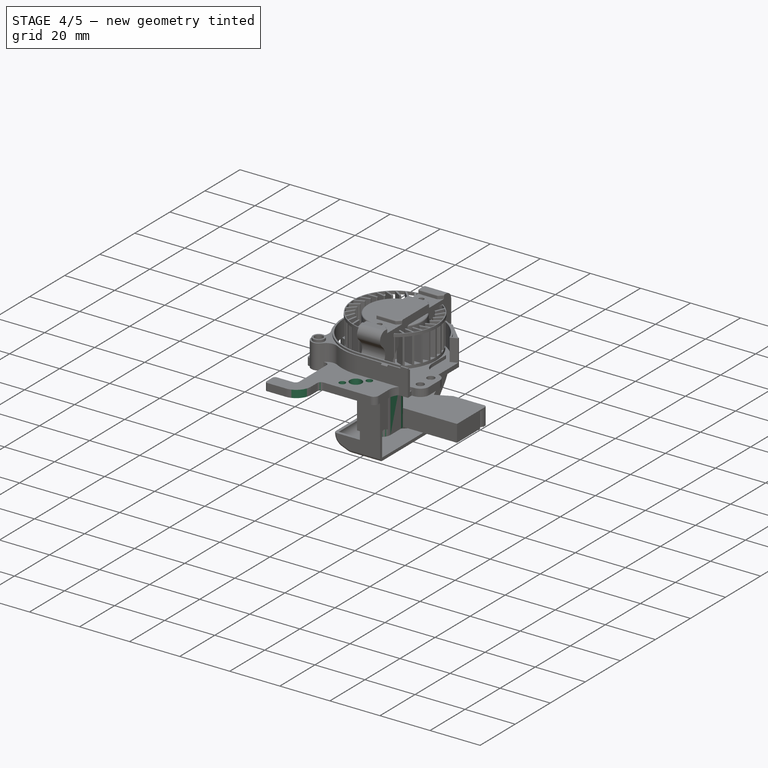
[diagram: stage 4 of 5 — iso view after this stage's code; geometry added in this stage tinted green]
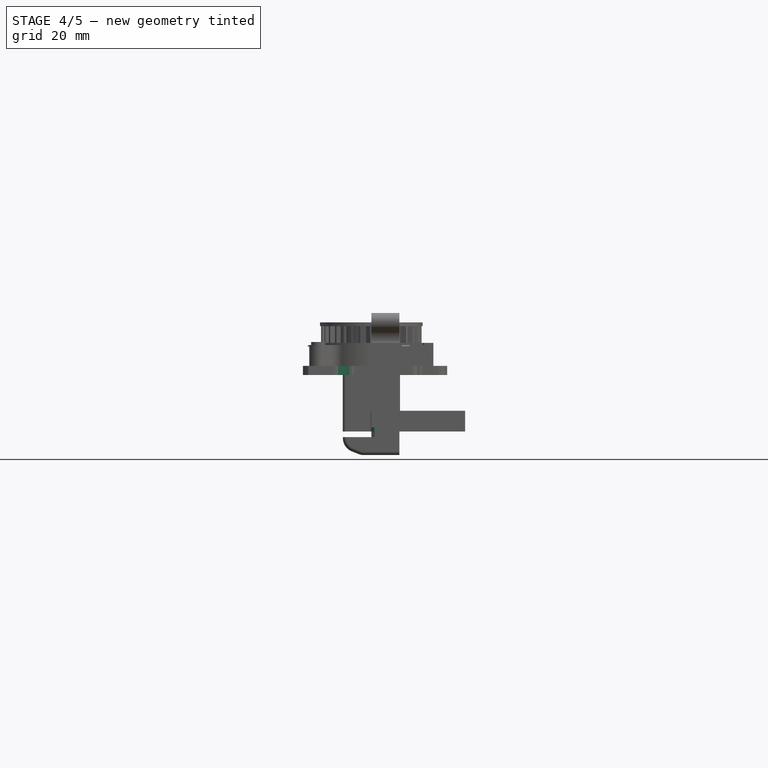
[diagram: stage 4 of 5 — front view after this stage's code; geometry added in this stage tinted green]
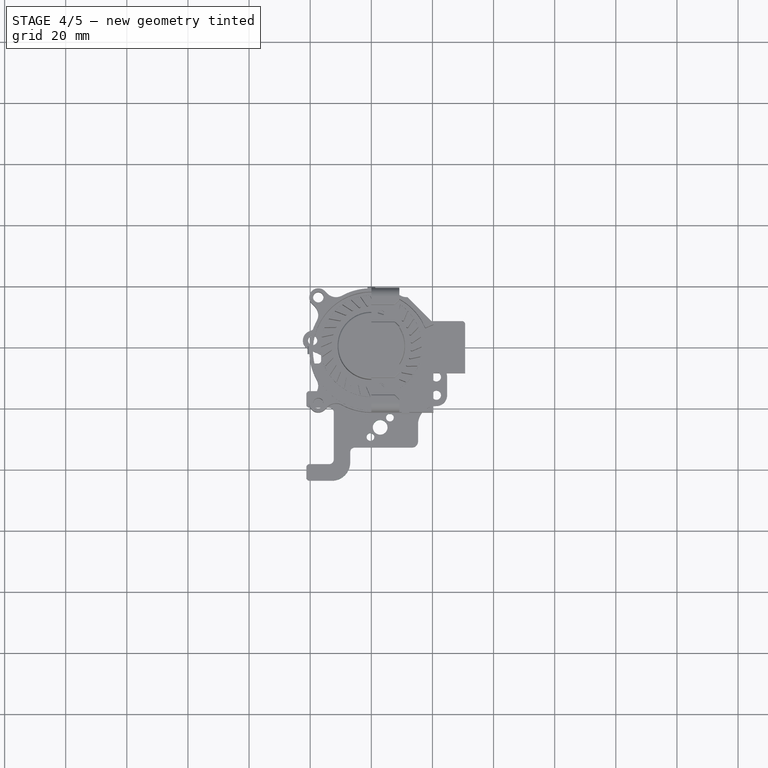
[diagram: stage 4 of 5 — top view after this stage's code; geometry added in this stage tinted green]
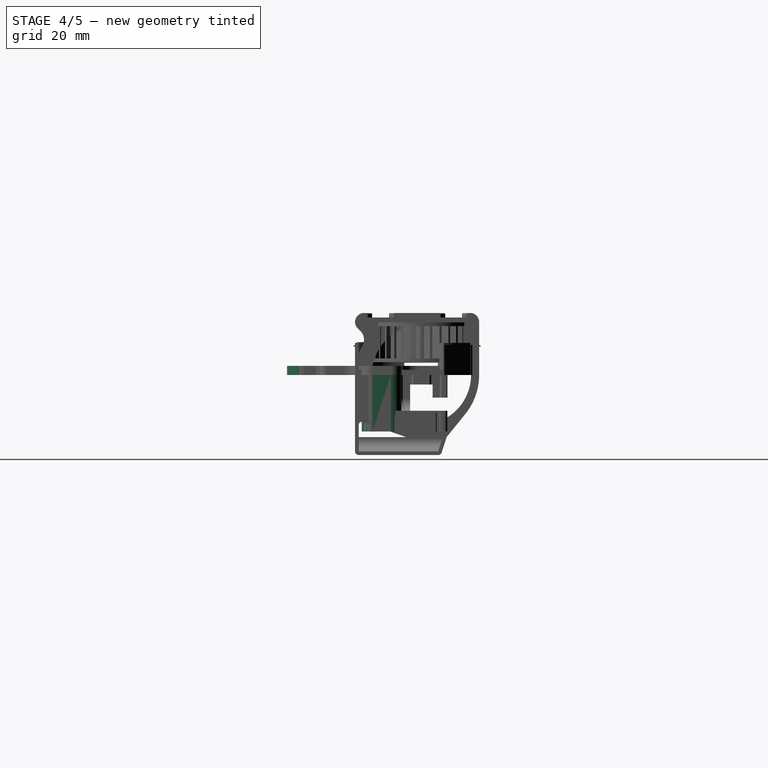
[diagram: stage 4 of 5 — right view after this stage's code; geometry added in this stage tinted green]
FEATURE [Sketcher::SketchObject] Sketch008
  FullyConstrained = true
  MapMode = 5
  Support = -> [XY_Plane005]
  expr: Constraints[8] = -(5 + 1.5)
  sketch-geometry (4):
    g0: LineSegment StartX=0.5 StartY=-6.5 StartZ=0 EndX=9.4 EndY=-6.5 EndZ=0
    g1: LineSegment StartX=9.4 StartY=-6.5 StartZ=0 EndX=9.4 EndY=-19.5 EndZ=0
    g2: LineSegment StartX=9.4 StartY=-19.5 StartZ=0 EndX=0.5 EndY=-19.5 EndZ=0
    g3: LineSegment StartX=0.5 StartY=-19.5 StartZ=0 EndX=0.5 EndY=-6.5 EndZ=0
  constraints (12):
    c: Coincident(g0,g1)
    c: Coincident(g1,g2)
    c: Coincident(g2,g3)
    c: Coincident(g3,g0)
    c: Horizontal(g0)
    c: Horizontal(g2)
    c: Vertical(g1)
    c: Vertical(g3)
    c: DistanceY(g-1,g0) = -6.5
    c: DistanceX(g-2,g0) = 0.5
    c: Distance(g1) = 13
    c: Distance(g-1,g1) = 9.4
FEATURE [PartDesign::Pad] Pad004
  AddSubType = 0
  CheckUpToFaceLimits = true
  ClaimChildren = false
  Direction = (1,1,1)
  Fit = 0
  FitJoin = 0
  InnerFit = 0
  InnerFitJoin = 0
  InnerTaperAngle = 0
  InnerTaperAngleRev = 0
  Length = 18.5
  Length2 = 100
  Linearize = true
  NewSolid = false
  Profile = -> Sketch008
  Refine = true
  Reversed = true
  Suppress = false
  Type = 0
  _ProfileBasedVersion = 0
FEATURE [Sketcher::SketchObject] Sketch009
  FullyConstrained = true
  MapMode = 5
  Support = -> [XY_Plane005]
  expr: Constraints[10] = Sketch008.Constraints[10]
  expr: Constraints[11] = Sketch008.Constraints[11]
  expr: Constraints[8] = Sketch008.Constraints[8]
  expr: Constraints[9] = Sketch008.Constraints[9]
  sketch-geometry (10):
    g0: LineSegment [constr] StartX=0.5 StartY=-6.5 StartZ=0 EndX=9.4 EndY=-6.5 EndZ=0
    g1: LineSegment [constr] StartX=9.4 StartY=-6.5 StartZ=0 EndX=9.4 EndY=-19.5 EndZ=0
    g2: LineSegment [constr] StartX=9.4 StartY=-19.5 StartZ=0 EndX=0.5 EndY=-19.5 EndZ=0
    g3: LineSegment [constr] StartX=0.5 StartY=-19.5 StartZ=0 EndX=0.5 EndY=-6.5 EndZ=0
    g4: LineSegment StartX=2.1 StartY=-18.3 StartZ=0 EndX=3.6 EndY=-18.3 EndZ=0
    g5: LineSegment StartX=3.6 StartY=-18.3 StartZ=0 EndX=3.6 EndY=-8.5 EndZ=0
    g6: ArcOfCircle CenterX=5.6 CenterY=-8.5 CenterZ=0 NormalX=0 NormalY=0 NormalZ=1 AngleXU=0 Radius=2 StartAngle=1.5708 EndAngle=3.14159
    g7: LineSegment StartX=2.1 StartY=-18.3 StartZ=0 EndX=2.1 EndY=-8.5 EndZ=0
    g8: ArcOfCircle CenterX=5.6 CenterY=-8.5 CenterZ=0 NormalX=0 NormalY=0 NormalZ=1 AngleXU=0 Radius=3.5 StartAngle=2.53335 EndAngle=3.14159
    g9: LineSegment StartX=2.72772 StartY=-6.5 StartZ=0 EndX=5.6 EndY=-6.5 EndZ=0
  constraints (29):
    c: Coincident(g0,g1)
    c: Coincident(g1,g2)
    c: Coincident(g2,g3)
    c: Coincident(g3,g0)
    c: Horizontal(g0)
    c: Horizontal(g2)
    c: Vertical(g1)
    c: Vertical(g3)
    c: DistanceY(g-1,g0) = -6.5
    c: DistanceX(g-2,g0) = 0.5
    c: Distance(g1) = 13
    c: Distance(g-1,g1) = 9.4
    c: Horizontal(g4)
    c: Coincident(g4,g5)
    c: Vertical(g5)
    c: Tangent(g5,g6) = 1.5708
    c: PointOnObject(g6,g0)
    c: Coincident(g4,g7)
    c: Vertical(g7)
    c: Tangent(g7,g8) = 1.5708
    c: PointOnObject(g8,g0)
    c: Coincident(g6,g8)
    c: Distance(g4) = 1.5
    c: Distance(g4,g2) = 1.2
    c: Distance(g4,g3) = 1.6
    c: Tangent(g6,g0)
    c: DistanceX(g-2,g6) = 5.6
    c: Coincident(g9,g8)
    c: Coincident(g9,g6)
FEATURE [PartDesign::Pocket] Pocket005
  AddSubType = 1
  BaseFeature = -> Pad004
  CheckUpToFaceLimits = true
  ClaimChildren = false
  Fit = 0
  FitJoin = 0
  InnerFit = 0
  InnerFitJoin = 0
  InnerTaperAngle = 0
  InnerTaperAngleRev = 0
  Length = 6.5
  Length2 = 100
  Linearize = true
  NewSolid = false
  Profile = -> Sketch009
  Refine = true
  Suppress = false
  Type = 0
  _ProfileBasedVersion = 0
FEATURE [Sketcher::SketchObject] Sketch010
  ExternalGeometry = -> [Pocket005]
  FullyConstrained = true
  MapMode = 5
  Support = -> [XY_Plane005]
  expr: Constraints[11] = <<Sketch_tooth>>.Constraints.angle
  expr: Constraints[12] = <<Sketch_tooth>>.Constraints.r
  expr: Constraints[13] = <<Sketch_tooth>>.Constraints.breite
  expr: Constraints[14] = <<Sketch_tooth>>.Constraints.height
  sketch-geometry (7):
    g0: LineSegment StartX=3.6 StartY=-16.5858 StartZ=0 EndX=3.08507 EndY=-16.7 EndZ=0
    g1: ArcOfCircle CenterX=3.15 CenterY=-16.9929 CenterZ=0 NormalX=0 NormalY=0 NormalZ=1 AngleXU=0 Radius=0.3 StartAngle=1.78896 EndAngle=3.14159
    g2: LineSegment StartX=2.85 StartY=-16.9929 StartZ=0 EndX=2.85 EndY=-17.2071 EndZ=0
    g3: ArcOfCircle CenterX=3.15 CenterY=-17.2071 CenterZ=0 NormalX=0 NormalY=0 NormalZ=1 AngleXU=0 Radius=0.3 StartAngle=3.14159 EndAngle=4.49422
    g4: LineSegment StartX=3.08507 StartY=-17.5 StartZ=0 EndX=3.6 EndY=-17.6142 EndZ=0
    g5: LineSegment StartX=3.6 StartY=-17.6142 StartZ=0 EndX=3.6 EndY=-16.5858 EndZ=0
    g6: GeomPoint [constr] X=2.85 Y=-17.1 Z=0
  constraints (17):
    c: Tangent(g0,g1) = -1.5708
    c: Tangent(g1,g2) = -1.5708
    c: Tangent(g2,g3) = -1.5708
    c: Tangent(g3,g4) = -1.5708
    c: Coincident(g4,g5)
    c: Coincident(g5,g0)
    c: Vertical(g5)
    c: PointOnObject(g-3,g5)
    c: Equal(g4,g0)
    c: Vertical(g2)
    c: Equal(g1,g3)
    c: Angle(g4,g0) = 0.436332
    c: Radius(g1) = 0.3
    c: Distance(g0,g3) = 0.8
    c: Distance(g2,g5) = 0.75
    c: Symmetric(g1,g2,g6)
    c: DistanceY(g-3,g6) = 1.2
FEATURE [PartDesign::Pad] Pad005
  AddSubType = 0
  BaseFeature = -> Pocket005
  CheckUpToFaceLimits = true
  ClaimChildren = false
  Direction = (1,1,1)
  Fit = 0
  FitJoin = 0
  InnerFit = 0
  InnerFitJoin = 0
  InnerTaperAngle = 0
  InnerTaperAngleRev = 0
  Length = 7
  Length2 = 100
  Linearize = true
  NewSolid = false
  Profile = -> Sketch010
  Refine = true
  Reversed = true
  Suppress = false
  Type = 0
  _ProfileBasedVersion = 0
FEATURE [PartDesign::LinearPattern] LinearPattern001
  AddSubType = 0
  BaseFeature = -> Pad005
  CopyShape = false
  Direction = -> Y_Axis005
  Length = 6
  NewSolid = false
  Occurrences = 4
  ParallelTransform = true
  Refine = true
  SubTransform = true
  Suppress = false
  _Version = 0
FEATURE [PartDesign::Fillet] Fillet014
  AddSubType = 0
  Base = -> Fillet013 [Edge75,Edge3,Edge77,Edge78]
  BaseFeature = -> Fillet013
  NewSolid = false
  Radius = 1.5
  Refine = true
  SupportTransform = false
  Suppress = false
FEATURE [PartDesign::Fillet] Fillet015
  AddSubType = 0
  Base = -> Fillet014 [Edge69,Edge71,Edge81,Edge83]
  BaseFeature = -> Fillet014
  NewSolid = false
  Radius = 1
  Refine = true
  SupportTransform = false
  Suppress = false
FEATURE [PartDesign::Fillet] Fillet016
  AddSubType = 0
  Base = -> Fillet015 [Edge84]
  BaseFeature = -> Fillet015
  NewSolid = false
  Radius = 6
  Refine = true
  SupportTransform = false
  Suppress = false
FEATURE [PartDesign::SubShapeBinder] Binder001  label="Binder001(Slice Mosquito-0.step)"
  BindCopyOnChange = 0
  BindMode = 0
  ClaimChildren = false
  Context = -> <external Xprinter_v2_0_13.FCStd>#Model [toolhead.Body.Binder001.]
  FillStyle = 0
  Fuse = false
  MakeFace = true
  PartialLoad = false
  Relative = true
  Support = -> [Mosquitto[Part__Feature146.Face272]]
  _Version = 8
FEATURE [Sketcher::SketchObject] Sketch030
  ExternalGeometry = -> [Binder001]
  FullyConstrained = true
  MapMode = 5
  Support = -> [XY_Plane003]
  sketch-geometry (8):
    g0: Circle CenterX=-6.5 CenterY=6 CenterZ=0 NormalX=0 NormalY=0 NormalZ=1 AngleXU=0 Radius=1
    g1: Circle CenterX=6.5 CenterY=6 CenterZ=0 NormalX=0 NormalY=0 NormalZ=1 AngleXU=0 Radius=1
    g2: Circle CenterX=6.5 CenterY=-6 CenterZ=0 NormalX=0 NormalY=0 NormalZ=1 AngleXU=0 Radius=1
    g3: Circle CenterX=-6.5 CenterY=-6 CenterZ=0 NormalX=0 NormalY=0 NormalZ=1 AngleXU=0 Radius=1
    g4: Circle CenterX=6.08198 CenterY=-23.318 CenterZ=0 NormalX=0 NormalY=0 NormalZ=1 AngleXU=0 Radius=1.25
    g5: Circle CenterX=-0.281981 CenterY=-29.682 CenterZ=0 NormalX=0 NormalY=0 NormalZ=1 AngleXU=0 Radius=1.25
    g6: Circle CenterX=2.9 CenterY=-26.5 CenterZ=0 NormalX=0 NormalY=0 NormalZ=1 AngleXU=0 Radius=2.4
    g7: LineSegment [constr] StartX=6.08198 StartY=-23.318 StartZ=0 EndX=-0.281981 EndY=-29.682 EndZ=0
  constraints (19):
    c: Vertical(g1,g2)
    c: Horizontal(g2,g3)
    c: Equal(g1,g0)
    c: Equal(g0,g3)
    c: Equal(g3,g2)
    c: Diameter(g0) = 2
    c: Symmetric(g0,g3,g-1)
    c: Symmetric(g1,g0,g-2)
    c: Distance(g0,g3) = 12
    c: Distance(g0,g1) = 13
    c: Diameter(g5) = 2.5
    c: Equal(g5,g4)
    c: Diameter(g6) = 4.8
    c: Distance(g5,g6) = 4.5
    c: Coincident(g7,g4)
    c: Coincident(g7,g5)
    c: Symmetric(g4,g5,g6)
    c: Angle(g7,g-2) = 0.785398
    c: Symmetric(g-3,g-3,g6)
FEATURE [PartDesign::Pocket] Pocket019
  AddSubType = 1
  BaseFeature = -> Fillet016
  CheckUpToFaceLimits = true
  ClaimChildren = false
  Fit = 0
  FitJoin = 0
  InnerFit = 0
  InnerFitJoin = 0
  InnerTaperAngle = 0
  InnerTaperAngleRev = 0
  Length = 5
  Length2 = 100
  Linearize = true
  NewSolid = false
  Profile = -> Sketch030
  Refine = true
  Reversed = true
  Suppress = false
  Type = 0
  _ProfileBasedVersion = 1
FEATURE [App::Part] Part001  label="4010_fan"
  ExportMode = 1
  Group = -> [Cut,Box,Part__Feature421]
  Origin = -> Origin010
  _ExportChildren = -> [Cut]
  _GroupVersion = 1
FEATURE [Part::Feature] Part__Feature125  label="MGN7-H"
  Placement = pos=(0,0,0) rot=(0,0,1;3.14159rad)
  shape: bbox 17 x 6.5 x 31.61 mm, 265 faces, 9 solids (baked)
FEATURE [PartDesign::SubShapeBinder] Binder003  label="Binder003(MGN7-H)..."
  BindCopyOnChange = 0
  BindMode = 0
  ClaimChildren = false
  Context = -> MGN7_H [Binder003.]
  FillStyle = 0
  Fuse = false
  MakeFace = true
  PartialLoad = false
  Relative = true
  Support = -> [Part__Feature125[Vertex354,Vertex355]]
  _Version = 7
FEATURE [PartDesign::CoordinateSystem] Local_CS  label="Local_move_point"
  AttacherType = Attacher::AttachEngine3D
  MapMode = 45
  Placement = pos=(-4e-15,0.05,-15.4) rot=(0.57735,0.57735,0.57735;2.0944rad)
  Support = -> [Binder003]
FEATURE [PartDesign::SubShapeBinder] Binder004  label="Binder004(MGN7-H)..."
  BindCopyOnChange = 0
  BindMode = 0
  ClaimChildren = false
  Context = -> MGN7_H [Binder004.]
  FillStyle = 0
  Fuse = false
  MakeFace = true
  PartialLoad = false
  Relative = true
  Support = -> [Part__Feature125[Edge97,Edge20,Edge33,Edge2]]
  _Version = 7
FEATURE [PartDesign::CoordinateSystem] Local_CS001  label="Local_mitte"
  AttacherType = Attacher::AttachEngine3D
  MapMode = 45
  Placement = pos=(4.4e-15,-3.25,0) rot=(-1,0,0;1.5708rad)
  Support = -> [Binder004]
FEATURE [App::Part] MGN7_H  label="MGN7_H_H"
  ExportMode = 1
  Group = -> [Part__Feature125,Binder003,Local_CS,Local_CS001,Binder004]
  Origin = -> Origin011
  _ExportChildren = -> [Part__Feature125,Binder003,Local_CS,Local_CS001,Binder004]
  _GroupVersion = 1
FEATURE [App::Part] Model  label="toolhead01"
  Configuration = 0
  ExportMode = 1
  Group = -> [LCS_Origin,Constraints,Variables,mgn7_H_MGN7_H,Mosquitto,Body,Feature,Body001,Body002,Part,Body005,Fusion]
  Origin = -> Origin
  Type = Assembly4 Model
  _ExportChildren = -> [LCS_Origin,Constraints,Variables,mgn7_H_MGN7_H,Mosquitto,Body,Feature,Part,Body005,Fusion]
  _GroupVersion = 1
FEATURE [PartDesign::Body] Body002  label="belt_right"
  AutoGroupSolids = false
  ExportMode = 0
  Group = -> [Sketch008,Pad004,Sketch009,Pocket005,Sketch010,Pad005,LinearPattern001,Sketch011,Export001,Pocket006,Pocket007,Fillet002,Fillet006,Sketch026,Pad012,Import001,Import002]
  Origin = -> Origin005
  Placement = pos=(15.4,0,0) rot=(0,0,1;0rad)
  Tip = -> Pad012
  _ExportChildren = -> [Pad004,Pocket005,Pad005,LinearPattern001,Pocket006,Pocket007,Fillet002,Fillet006,Pad012,Import001,Import002]
  _GroupVersion = 1
FEATURE [Sketcher::SketchObject] Sketch011
  AttachmentOffset = pos=(0,0,-18.5) rot=(0,0,1;0rad)
  Exports = -> [Export001]
  FullyConstrained = true
  MapMode = 5
  Placement = pos=(0,0,-18.5) rot=(0,0,1;0rad)
  Support = -> [XY_Plane005]
  expr: AttachmentOffset.Base.z = Pad004.Length * -1
  expr: Constraints[10] = Sketch008.Constraints[9]
  expr: Constraints[11] = Sketch008.Constraints[10]
  expr: Constraints[12] = Sketch008.Constraints[11]
  expr: Constraints[9] = Sketch008.Constraints[8]
  sketch-geometry (8):
    g0: Circle CenterX=5.9 CenterY=-10 CenterZ=0 NormalX=0 NormalY=0 NormalZ=1 AngleXU=0 Radius=1.5
    g1: Circle CenterX=5.9 CenterY=-16 CenterZ=0 NormalX=0 NormalY=0 NormalZ=1 AngleXU=0 Radius=1.5
    g2: LineSegment [constr] StartX=0.5 StartY=-6.5 StartZ=0 EndX=9.4 EndY=-6.5 EndZ=0
    g3: LineSegment [constr] StartX=9.4 StartY=-6.5 StartZ=0 EndX=9.4 EndY=-19.5 EndZ=0
    g4: LineSegment [constr] StartX=9.4 StartY=-19.5 StartZ=0 EndX=0.5 EndY=-19.5 EndZ=0
    g5: LineSegment [constr] StartX=0.5 StartY=-19.5 StartZ=0 EndX=0.5 EndY=-6.5 EndZ=0
    g6: Circle CenterX=5.9 CenterY=-10 CenterZ=0 NormalX=0 NormalY=0 NormalZ=1 AngleXU=0 Radius=2.05
    g7: Circle CenterX=5.9 CenterY=-16 CenterZ=0 NormalX=0 NormalY=0 NormalZ=1 AngleXU=0 Radius=2.05
  constraints (22):
    c: Equal(g0,g1)
    c: Diameter(g0) = 3
    c: Coincident(g2,g3)
    c: Coincident(g3,g4)
    c: Coincident(g4,g5)
    c: Coincident(g5,g2)
    c: Horizontal(g2)
    c: Vertical(g3)
    c: Vertical(g5)
    c: DistanceY(g-1,g2) = -6.5
    c: DistanceX(g-2,g2) = 0.5
    c: Distance(g3) = 13
    c: Distance(g-1,g3) = 9.4
    c: Vertical(g1,g0)
    c: Horizontal(g4)
    c: Coincident(g6,g0)
    c: Diameter(g6) = 4.1
    c: Coincident(g7,g1)
    c: Equal(g7,g6)
    c: Distance(g1,g3) = 3.5
    c: Distance(g1,g4) = 3.5
    c: Distance(g0,g2) = 3.5
FEATURE [Sketcher::SketchExport] Export001
  Base = -> Sketch011
  BaseRefs = -> Sketch011 [edge1,edge2]
  Placement = pos=(0,0,-18.5) rot=(0,0,1;0rad)
  Refs = ;g9.edge1 | ;g10.edge2
  SyncPlacement = true
FEATURE [PartDesign::Pocket] Pocket006
  AddSubType = 1
  BaseFeature = -> LinearPattern001
  CheckUpToFaceLimits = true
  ClaimChildren = false
  Fit = 0
  FitJoin = 0
  InnerFit = 0
  InnerFitJoin = 0
  InnerTaperAngle = 0
  InnerTaperAngleRev = 0
  Length = 5.8
  Length2 = 100
  Linearize = true
  NewSolid = false
  Profile = -> Sketch011
  Refine = true
  Reversed = true
  Suppress = false
  Type = 0
  _ProfileBasedVersion = 0
FEATURE [PartDesign::Pocket] Pocket007
  AddSubType = 1
  BaseFeature = -> Pocket006
  CheckUpToFaceLimits = true
  ClaimChildren = false
  Fit = 0
  FitJoin = 0
  InnerFit = 0
  InnerFitJoin = 0
  InnerTaperAngle = 0
  InnerTaperAngleRev = 0
  Length = 30
  Length2 = 100
  Linearize = true
  NewSolid = false
  Profile = -> Export001
  Refine = true
  Reversed = true
  Suppress = false
  Type = 0
  _ProfileBasedVersion = 0
FEATURE [PartDesign::Fillet] Fillet002
  AddSubType = 0
  Base = -> Pocket007 [Edge8,Edge80]
  BaseFeature = -> Pocket007
  NewSolid = false
  Radius = 0.4
  Refine = true
  SupportTransform = false
  Suppress = false
FEATURE [PartDesign::Fillet] Fillet006
  AddSubType = 0
  Base = -> Fillet002 [Edge6,Edge83]
  BaseFeature = -> Fillet002
  NewSolid = false
  Radius = 3.5
  Refine = true
  SupportTransform = false
  Suppress = false
FEATURE [Sketcher::SketchObject] Sketch026
  AttachmentOffset = pos=(0,0,-18.5) rot=(0,0,1;0rad)
  ExternalGeometry = -> [Fillet006]
  FullyConstrained = true
  MapMode = 5
  Placement = pos=(0,0,-18.5) rot=(0,0,1;0rad)
  Support = -> [XY_Plane005]
  expr: AttachmentOffset.Base.z = -Pad004.Length
  sketch-geometry (5):
    g0: ArcOfCircle CenterX=5.9 CenterY=0 CenterZ=0 NormalX=0 NormalY=0 NormalZ=1 AngleXU=0 Radius=6.5 StartAngle=3.14159 EndAngle=4.71239
    g1: LineSegment StartX=-0.6 StartY=-8.5 StartZ=0 EndX=-0.5 EndY=-8.5 EndZ=0
    g2: LineSegment StartX=0.5 StartY=-19.1 StartZ=0 EndX=0.5 EndY=-9.5 EndZ=0
    g3: ArcOfCircle CenterX=-0.5 CenterY=-9.5 CenterZ=0 NormalX=0 NormalY=0 NormalZ=1 AngleXU=0 Radius=1 StartAngle=-9e-16 EndAngle=1.5708
    g4: LineSegment StartX=-0.6 StartY=-8.5 StartZ=0 EndX=-0.6 EndY=0 EndZ=0
  constraints (12):
    c: PointOnObject(g0,g-1)
    c: PointOnObject(g0,g-1)
    c: Horizontal(g1)
    c: Tangent(g-5,g2) = 1.5708
    c: Tangent(g2,g3) = -1.5708
    c: Tangent(g1,g3) = 1.5708
    c: Radius(g3) = 1
    c: Distance(g-1,g1) = 8.5
    c: Tangent(g0,g-7) = 1.5708
    c: Coincident(g4,g1)
    c: Coincident(g4,g0)
    c: Vertical(g4)
FEATURE [PartDesign::Pad] Pad012
  AddSubType = 0
  BaseFeature = -> Fillet006
  CheckUpToFaceLimits = true
  ClaimChildren = false
  Direction = (1,1,1)
  Fit = 0
  FitJoin = 0
  InnerFit = 0
  InnerFitJoin = 0
  InnerTaperAngle = 0
  InnerTaperAngleRev = 0
  Length = 6.8
  Length2 = 100
  Linearize = true
  NewSolid = false
  Profile = -> Sketch026
  Refine = true
  Suppress = false
  Type = 0
  _ProfileBasedVersion = 1
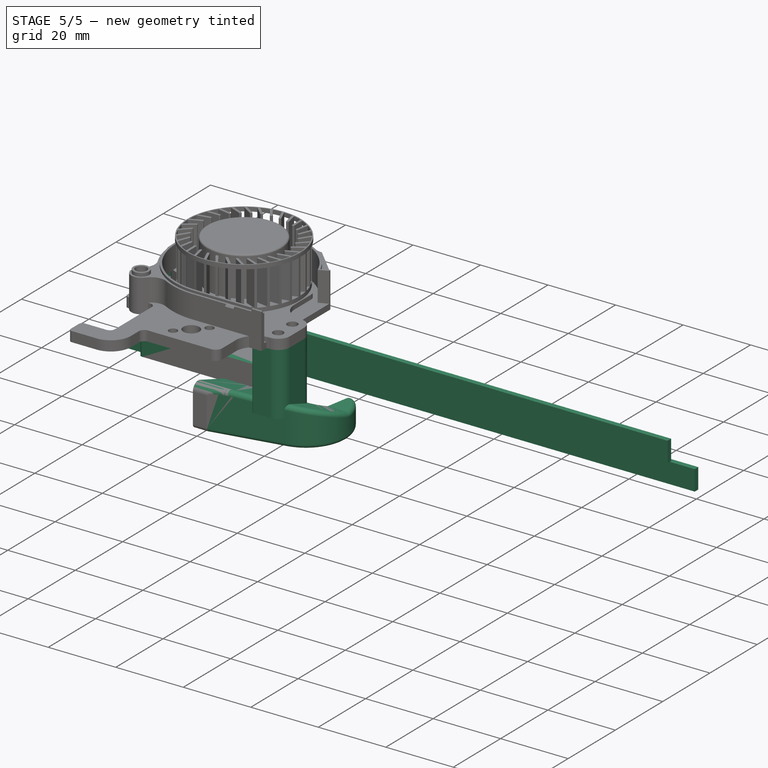
[diagram: stage 5 of 5 — iso view after this stage's code; geometry added in this stage tinted green]
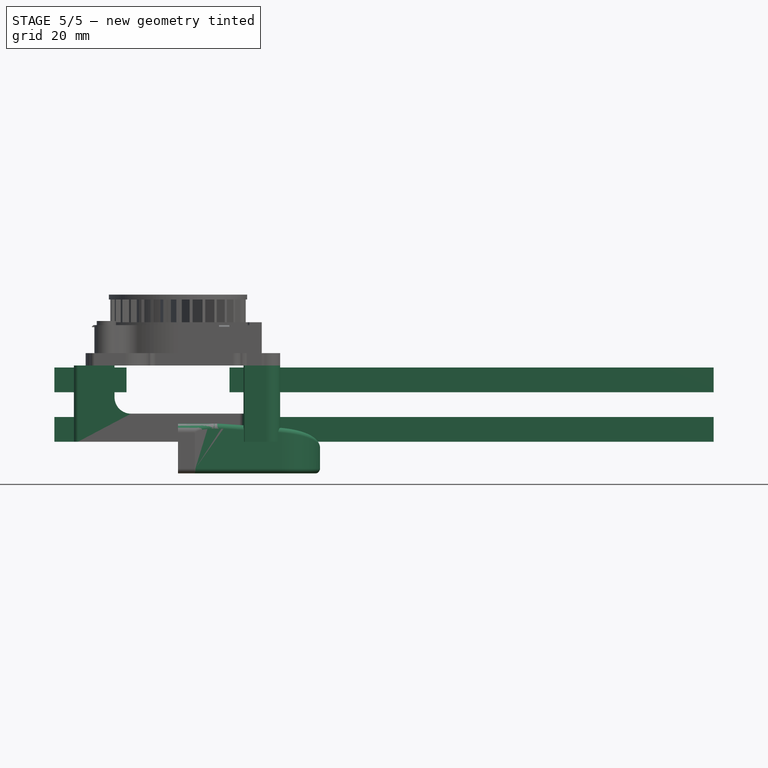
[diagram: stage 5 of 5 — front view after this stage's code; geometry added in this stage tinted green]
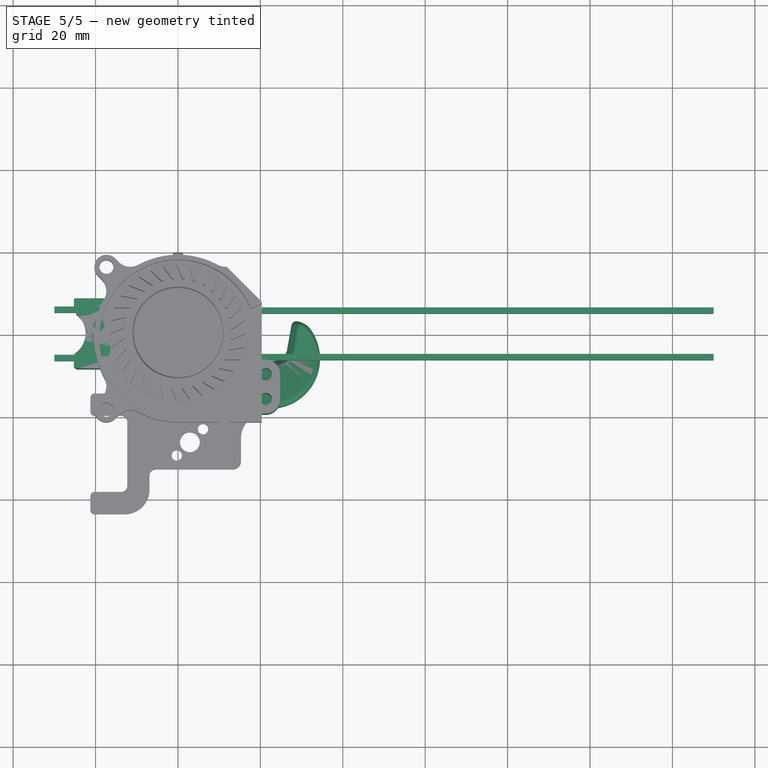
[diagram: stage 5 of 5 — top view after this stage's code; geometry added in this stage tinted green]
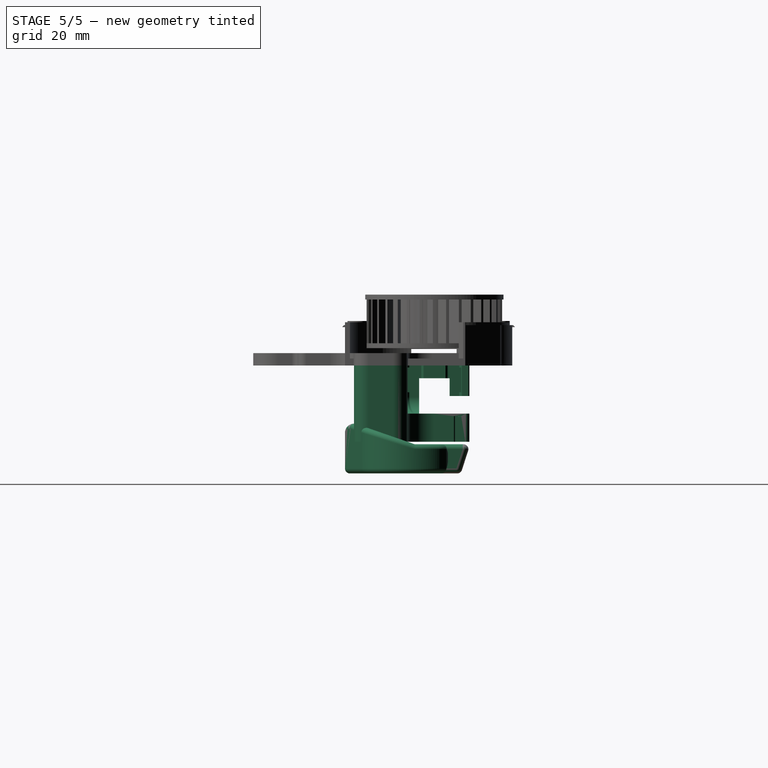
[diagram: stage 5 of 5 — right view after this stage's code; geometry added in this stage tinted green]
FEATURE [Sketcher::SketchObject] Sketch023
  FullyConstrained = true
  MapMode = 5
  Placement = pos=(0,0,0) rot=(0.57735,0.57735,0.57735;2.0944rad)
  Support = -> [YZ_Plane009]
  sketch-geometry (16):
    g0: LineSegment StartX=-6.5 StartY=-0.5 StartZ=0 EndX=-5 EndY=-0.5 EndZ=0
    g1: LineSegment StartX=-5 StartY=-0.5 StartZ=0 EndX=-5 EndY=-6.5 EndZ=0
    g2: LineSegment StartX=-5 StartY=-6.5 StartZ=0 EndX=-6.5 EndY=-6.5 EndZ=0
    g3: LineSegment StartX=-6.5 StartY=-6.5 StartZ=0 EndX=-6.5 EndY=-0.5 EndZ=0
    g4: LineSegment [constr] StartX=5 StartY=-0.5 StartZ=0 EndX=6.5 EndY=-0.5 EndZ=0
    g5: LineSegment [constr] StartX=6.5 StartY=-0.5 StartZ=0 EndX=6.5 EndY=-6.5 EndZ=0
    g6: LineSegment [constr] StartX=6.5 StartY=-6.5 StartZ=0 EndX=5 EndY=-6.5 EndZ=0
    g7: LineSegment [constr] StartX=5 StartY=-6.5 StartZ=0 EndX=5 EndY=-0.5 EndZ=0
    g8: LineSegment [constr] StartX=-6.5 StartY=-12.5 StartZ=0 EndX=-5 EndY=-12.5 EndZ=0
    g9: LineSegment [constr] StartX=-5 StartY=-12.5 StartZ=0 EndX=-5 EndY=-18.5 EndZ=0
    g10: LineSegment [constr] StartX=-5 StartY=-18.5 StartZ=0 EndX=-6.5 EndY=-18.5 EndZ=0
    g11: LineSegment [constr] StartX=-6.5 StartY=-18.5 StartZ=0 EndX=-6.5 EndY=-12.5 EndZ=0
    g12: LineSegment StartX=5 StartY=-12.5 StartZ=0 EndX=6.5 EndY=-12.5 EndZ=0
    g13: LineSegment StartX=6.5 StartY=-12.5 StartZ=0 EndX=6.5 EndY=-18.5 EndZ=0
    g14: LineSegment StartX=6.5 StartY=-18.5 StartZ=0 EndX=5 EndY=-18.5 EndZ=0
    g15: LineSegment StartX=5 StartY=-18.5 StartZ=0 EndX=5 EndY=-12.5 EndZ=0
  constraints (47):
    c: Coincident(g0,g1)
    c: Coincident(g1,g2)
    c: Coincident(g2,g3)
    c: Coincident(g3,g0)
    c: Horizontal(g0)
    c: Horizontal(g2)
    c: Vertical(g1)
    c: Vertical(g3)
    c: DistanceX(g0,g0) = 1.5
    c: Distance(g3) = 6
    c: Distance(g-1,g1) = 5
    c: Coincident(g4,g5)
    c: Coincident(g5,g6)
    c: Coincident(g6,g7)
    c: Coincident(g7,g4)
    c: Horizontal(g4)
    c: Horizontal(g6)
    c: Vertical(g5)
    c: Vertical(g7)
    c: Equal(g0,g4) = 1.5
    c: Equal(g3,g7) = 6
    c: Coincident(g8,g9)
    c: Coincident(g9,g10)
    c: Coincident(g10,g11)
    c: Coincident(g11,g8)
    c: Horizontal(g8)
    c: Horizontal(g10)
    c: Vertical(g9)
    c: Vertical(g11)
    c: Equal(g0,g8) = 1.5
    c: Equal(g3,g11) = 6
    c: Coincident(g12,g13)
    c: Coincident(g13,g14)
    c: Coincident(g14,g15)
    c: Coincident(g15,g12)
    c: Horizontal(g12)
    c: Horizontal(g14)
    c: Vertical(g13)
    c: Vertical(g15)
    c: Equal(g8,g12) = 1.5
    c: Equal(g11,g15) = 6
    c: Symmetric(g1,g6,g-2)
    c: Vertical(g1,g8)
    c: Vertical(g6,g12)
    c: Horizontal(g12,g8)
    c: Distance(g-1,g2) = 6.5
    c: Distance(g-1,g8) = 12.5
FEATURE [Sketcher::SketchObject] Sketch024
  FullyConstrained = true
  MapMode = 5
  Placement = pos=(0,0,0) rot=(0.57735,0.57735,0.57735;2.0944rad)
  Support = -> [Sketch023]
  expr: Constraints[10] = Sketch023.Constraints[10]
  expr: Constraints[45] = Sketch023.Constraints[45]
  expr: Constraints[46] = Sketch023.Constraints[46]
  expr: Constraints[8] = Sketch023.Constraints[8]
  expr: Constraints[9] = Sketch023.Constraints[9]
  sketch-geometry (16):
    g0: LineSegment [constr] StartX=-6.5 StartY=-0.5 StartZ=0 EndX=-5 EndY=-0.5 EndZ=0
    g1: LineSegment [constr] StartX=-5 StartY=-0.5 StartZ=0 EndX=-5 EndY=-6.5 EndZ=0
    g2: LineSegment [constr] StartX=-5 StartY=-6.5 StartZ=0 EndX=-6.5 EndY=-6.5 EndZ=0
    g3: LineSegment [constr] StartX=-6.5 StartY=-6.5 StartZ=0 EndX=-6.5 EndY=-0.5 EndZ=0
    g4: LineSegment StartX=5 StartY=-0.5 StartZ=0 EndX=6.5 EndY=-0.5 EndZ=0
    g5: LineSegment StartX=6.5 StartY=-0.5 StartZ=0 EndX=6.5 EndY=-6.5 EndZ=0
    g6: LineSegment StartX=6.5 StartY=-6.5 StartZ=0 EndX=5 EndY=-6.5 EndZ=0
    g7: LineSegment StartX=5 StartY=-6.5 StartZ=0 EndX=5 EndY=-0.5 EndZ=0
    g8: LineSegment StartX=-6.5 StartY=-12.5 StartZ=0 EndX=-5 EndY=-12.5 EndZ=0
    g9: LineSegment StartX=-5 StartY=-12.5 StartZ=0 EndX=-5 EndY=-18.5 EndZ=0
    g10: LineSegment StartX=-5 StartY=-18.5 StartZ=0 EndX=-6.5 EndY=-18.5 EndZ=0
    g11: LineSegment StartX=-6.5 StartY=-18.5 StartZ=0 EndX=-6.5 EndY=-12.5 EndZ=0
    g12: LineSegment [constr] StartX=5 StartY=-12.5 StartZ=0 EndX=6.5 EndY=-12.5 EndZ=0
    g13: LineSegment [constr] StartX=6.5 StartY=-12.5 StartZ=0 EndX=6.5 EndY=-18.5 EndZ=0
    g14: LineSegment [constr] StartX=6.5 StartY=-18.5 StartZ=0 EndX=5 EndY=-18.5 EndZ=0
    g15: LineSegment [constr] StartX=5 StartY=-18.5 StartZ=0 EndX=5 EndY=-12.5 EndZ=0
  constraints (47):
    c: Coincident(g0,g1)
    c: Coincident(g1,g2)
    c: Coincident(g2,g3)
    c: Coincident(g3,g0)
    c: Horizontal(g0)
    c: Horizontal(g2)
    c: Vertical(g1)
    c: Vertical(g3)
    c: DistanceX(g0,g0) = 1.5
    c: Distance(g3) = 6
    c: Distance(g-1,g1) = 5
    c: Coincident(g4,g5)
    c: Coincident(g5,g6)
    c: Coincident(g6,g7)
    c: Coincident(g7,g4)
    c: Horizontal(g4)
    c: Horizontal(g6)
    c: Vertical(g5)
    c: Vertical(g7)
    c: Equal(g0,g4) = 1.5
    c: Equal(g3,g7) = 6
    c: Coincident(g8,g9)
    c: Coincident(g9,g10)
    c: Coincident(g10,g11)
    c: Coincident(g11,g8)
    c: Horizontal(g8)
    c: Horizontal(g10)
    c: Vertical(g9)
    c: Vertical(g11)
    c: Equal(g0,g8) = 1.5
    c: Equal(g3,g11) = 6
    c: Coincident(g12,g13)
    c: Coincident(g13,g14)
    c: Coincident(g14,g15)
    c: Coincident(g15,g12)
    c: Horizontal(g12)
    c: Horizontal(g14)
    c: Vertical(g13)
    c: Vertical(g15)
    c: Equal(g8,g12) = 1.5
    c: Equal(g11,g15) = 6
    c: Symmetric(g1,g6,g-2)
    c: Vertical(g1,g8)
    c: Vertical(g6,g12)
    c: Horizontal(g12,g8)
    c: Distance(g-1,g2) = 6.5
    c: Distance(g-1,g8) = 12.5
FEATURE [PartDesign::Pad] Pad010
  AddSubType = 0
  CheckUpToFaceLimits = true
  ClaimChildren = false
  Direction = (1,1,1)
  Fit = 0
  FitJoin = 0
  InnerFit = 0
  InnerFitJoin = 0
  InnerTaperAngle = 0
  InnerTaperAngleRev = 0
  Length = 130
  Length2 = 100
  Linearize = true
  NewSolid = false
  Placement = pos=(0,0,0) rot=(0.57735,0.57735,0.57735;2.0944rad)
  Profile = -> Sketch023
  Refine = true
  Suppress = false
  Type = 0
  _ProfileBasedVersion = 1
FEATURE [PartDesign::Pad] Pad011
  AddSubType = 0
  BaseFeature = -> Pad010
  CheckUpToFaceLimits = true
  ClaimChildren = false
  Direction = (1,1,1)
  Fit = 0
  FitJoin = 0
  InnerFit = 0
  InnerFitJoin = 0
  InnerTaperAngle = 0
  InnerTaperAngleRev = 0
  Length = 30
  Length2 = 100
  Linearize = true
  NewSolid = false
  Placement = pos=(0,0,0) rot=(0.57735,0.57735,0.57735;2.0944rad)
  Profile = -> Sketch024
  Refine = true
  Reversed = true
  Suppress = false
  Type = 0
  _ProfileBasedVersion = 1
FEATURE [Sketcher::SketchObject] Sketch025
  FullyConstrained = false
  MapMode = 5
  Placement = pos=(0,0,0) rot=(0.57735,0.57735,0.57735;2.0944rad)
  Support = -> [YZ_Plane009]
  sketch-geometry (4):
    g0: LineSegment StartX=-14.6053 StartY=8.73218 StartZ=0 EndX=20.8505 EndY=8.73218 EndZ=0
    g1: LineSegment StartX=20.8505 StartY=8.73218 StartZ=0 EndX=20.8505 EndY=-24.7187 EndZ=0
    g2: LineSegment StartX=20.8505 StartY=-24.7187 StartZ=0 EndX=-14.6053 EndY=-24.7187 EndZ=0
    g3: LineSegment StartX=-14.6053 StartY=-24.7187 StartZ=0 EndX=-14.6053 EndY=8.73219 EndZ=0
  constraints (8):
    c: Coincident(g0,g1)
    c: Coincident(g1,g2)
    c: Coincident(g2,g3)
    c: Coincident(g3,g0)
    c: Horizontal(g0)
    c: Horizontal(g2)
    c: Vertical(g1)
    c: Vertical(g3)
FEATURE [PartDesign::Pocket] Pocket017
  AddSubType = 1
  BaseFeature = -> Pad011
  CheckUpToFaceLimits = true
  ClaimChildren = false
  Fit = 0
  FitJoin = 0
  InnerFit = 0
  InnerFitJoin = 0
  InnerTaperAngle = 0
  InnerTaperAngleRev = 0
  Length = 25
  Length2 = 100
  Linearize = true
  Midplane = true
  NewSolid = false
  Placement = pos=(0,0,0) rot=(0.57735,0.57735,0.57735;2.0944rad)
  Profile = -> Sketch025
  Refine = true
  Suppress = false
  Type = 0
  _ProfileBasedVersion = 1
FEATURE [PartDesign::Body] Body  label="ALU"
  AutoGroupSolids = false
  ExportMode = 0
  Group = -> [Sketch001,Pad001,Sketch029,Import003,Pad015,Fillet013,Fillet014,Fillet015,Fillet016,Sketch030,Pocket019,Import004,Binder001]
  Origin = -> Origin003
  Tip = -> Pocket019
  _ExportChildren = -> [Pad001,Import003,Pad015,Fillet013,Fillet014,Fillet015,Fillet016,Pocket019,Import004,Binder001]
  _GroupVersion = 1
FEATURE [PartDesign::SubShapeBinder] Binder002  label="Binder002(fan_duct)"
  BindCopyOnChange = 0
  BindMode = 0
  ClaimChildren = false
  Context = -> <external Xprinter_v2_0_13.FCStd>#Model [toolhead.Part.Body004.Binder002.]
  FillStyle = 0
  Fuse = false
  MakeFace = true
  PartialLoad = false
  Relative = true
  Support = -> [Body003]
  _Version = 8
FEATURE [Sketcher::SketchObject] Sketch015
  ExternalGeometry = -> [Binder002]
  FullyConstrained = true
  MapMode = 5
  Placement = pos=(0,0,0) rot=(0.57735,0.57735,0.57735;2.0944rad)
  Support = -> [YZ_Plane008]
FEATURE [PartDesign::Pad] Pad009
  AddSubType = 0
  CheckUpToFaceLimits = true
  ClaimChildren = false
  Direction = (1,1,1)
  Fit = 0
  FitJoin = 0
  InnerFit = 0
  InnerFitJoin = 0
  InnerTaperAngle = 0
  InnerTaperAngleRev = 0
  Length = 38
  Length2 = 100
  Linearize = true
  NewSolid = false
  Placement = pos=(0,0,0) rot=(0.57735,0.57735,0.57735;2.0944rad)
  Profile = -> Sketch015
  Refine = true
  Suppress = false
  Type = 0
  _ProfileBasedVersion = 1
FEATURE [PartDesign::Fillet] Fillet005
  AddSubType = 0
  Base = -> Pad009 [Edge2]
  BaseFeature = -> Pad009
  NewSolid = false
  Placement = pos=(0,0,0) rot=(0.57735,0.57735,0.57735;2.0944rad)
  Radius = 1.3
  Refine = true
  SupportTransform = false
  Suppress = false
FEATURE [PartDesign::Pocket] Pocket008
  AddSubType = 1
  BaseFeature = -> Fillet005
  CheckUpToFaceLimits = true
  ClaimChildren = false
  Fit = 0
  FitJoin = 0
  InnerFit = 0
  InnerFitJoin = 0
  InnerTaperAngle = 0
  InnerTaperAngleRev = 0
  Length = 5
  Length2 = 100
  Linearize = true
  NewSolid = false
  Placement = pos=(0,0,0) rot=(0.57735,0.57735,0.57735;2.0944rad)
  Profile = -> Sketch016
  Refine = true
  Suppress = false
  Type = 1
  _ProfileBasedVersion = 1
FEATURE [PartDesign::Chamfer] Chamfer001
  AddSubType = 0
  Angle = 35
  Base = -> Pocket008 [Edge43,Edge33]
  BaseFeature = -> Pocket008
  ChamferType = 2
  FlipDirection = false
  NewSolid = false
  Placement = pos=(0,0,0) rot=(0.57735,0.57735,0.57735;2.0944rad)
  Refine = true
  Size = 1.7
  Size2 = 1
  SupportTransform = false
  Suppress = false
FEATURE [PartDesign::Chamfer] Chamfer004
  AddSubType = 0
  Angle = 45
  Base = -> Chamfer001 [Edge8,Edge19]
  BaseFeature = -> Chamfer001
  ChamferType = 0
  FlipDirection = false
  NewSolid = false
  Placement = pos=(0,0,0) rot=(0.57735,0.57735,0.57735;2.0944rad)
  Refine = true
  Size = 1
  Size2 = 1
  SupportTransform = false
  Suppress = false
FEATURE [PartDesign::Draft] Draft
  AddSubType = 0
  Angle = 14
  Base = -> Chamfer004 [Face29]
  BaseFeature = -> Chamfer004
  NewSolid = false
  Placement = pos=(0,0,0) rot=(0.57735,0.57735,0.57735;2.0944rad)
  Refine = true
  SupportTransform = false
  Suppress = false
FEATURE [PartDesign::Thickness] Thickness002
  AddSubType = 0
  Base = -> Draft [Face19]
  BaseFeature = -> Draft
  Intersection = false
  Join = 0
  Mode = 0
  NewSolid = false
  Refine = true
  SupportTransform = false
  Suppress = false
  Value = 1.2
FEATURE [PartDesign::Pocket] Pocket009
  AddSubType = 1
  BaseFeature = -> Thickness002
  CheckUpToFaceLimits = true
  ClaimChildren = false
  Fit = 0
  FitJoin = 0
  InnerFit = 0
  InnerFitJoin = 0
  InnerTaperAngle = 0
  InnerTaperAngleRev = 0
  Length = 1.2
  Length2 = 100
  Linearize = true
  NewSolid = false
  Profile = -> Thickness002 [Face6]
  Refine = true
  Suppress = false
  Type = 0
  _ProfileBasedVersion = 1
FEATURE [PartDesign::Pocket] Pocket010
  AddSubType = 1
  BaseFeature = -> Pocket009
  CheckUpToFaceLimits = true
  ClaimChildren = false
  Fit = 0
  FitJoin = 0
  InnerFit = 0
  InnerFitJoin = 0
  InnerTaperAngle = 0
  InnerTaperAngleRev = 0
  Length = 1.2
  Length2 = 100
  Linearize = true
  NewSolid = false
  Profile = -> Pocket009 [Face106]
  Refine = true
  Suppress = false
  Type = 0
  _ProfileBasedVersion = 1
FEATURE [PartDesign::Pocket] Pocket011
  AddSubType = 1
  BaseFeature = -> Pocket010
  CheckUpToFaceLimits = true
  ClaimChildren = false
  Fit = 0
  FitJoin = 0
  InnerFit = 0
  InnerFitJoin = 0
  InnerTaperAngle = 0
  InnerTaperAngleRev = 0
  Length = 5
  Length2 = 100
  Linearize = true
  NewSolid = false
  Profile = -> Sketch017
  Refine = true
  Reversed = true
  Suppress = false
  Type = 0
  _ProfileBasedVersion = 1
FEATURE [Part::MultiFuse] Fusion
  Refine = true
  Shapes = -> [Body002,Body001]
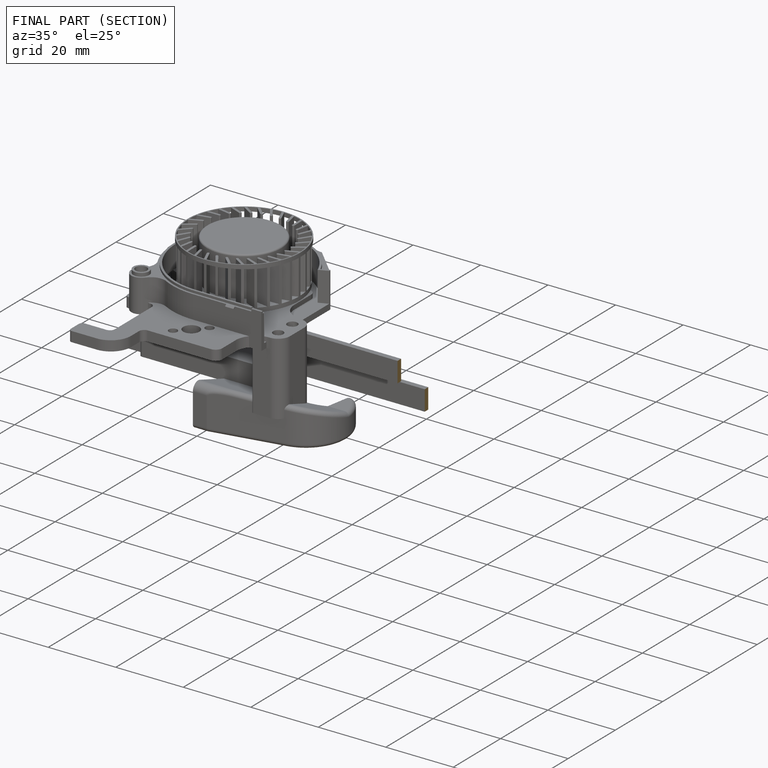
[diagram: finished part — half-section view (interior)]
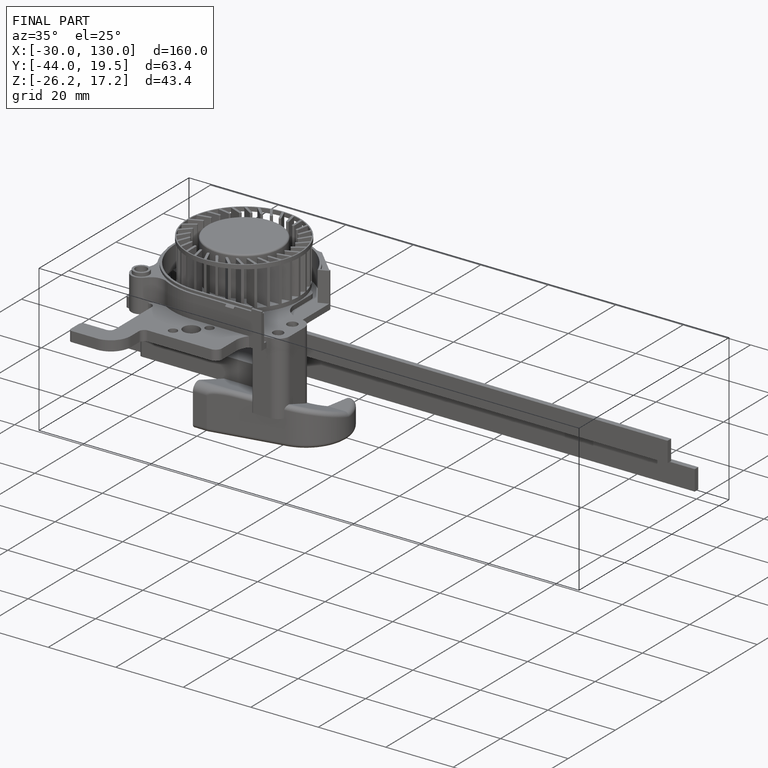
[diagram: finished part — iso view with bounding-box wireframe]
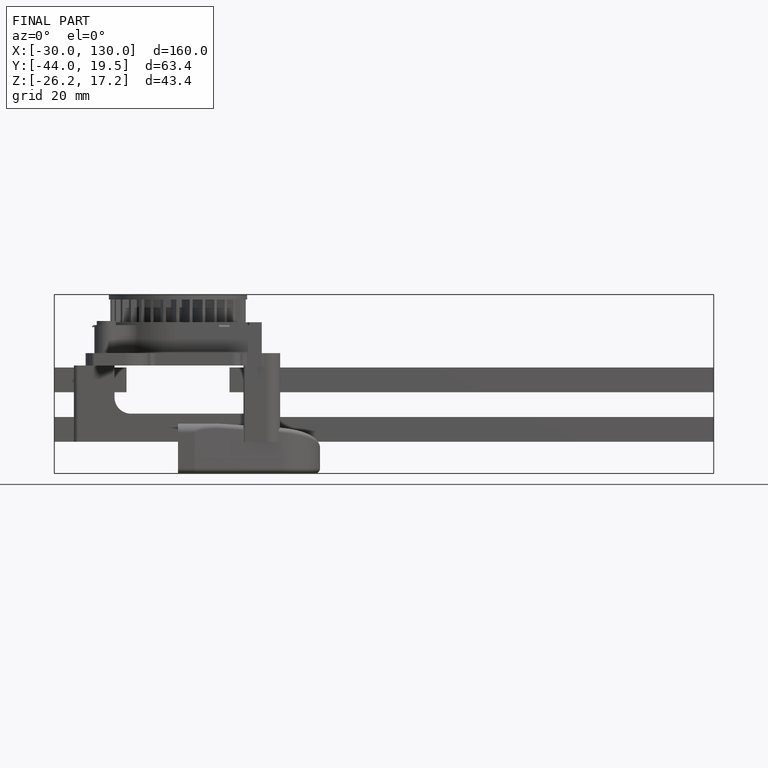
[diagram: finished part — front view with bounding-box wireframe]
